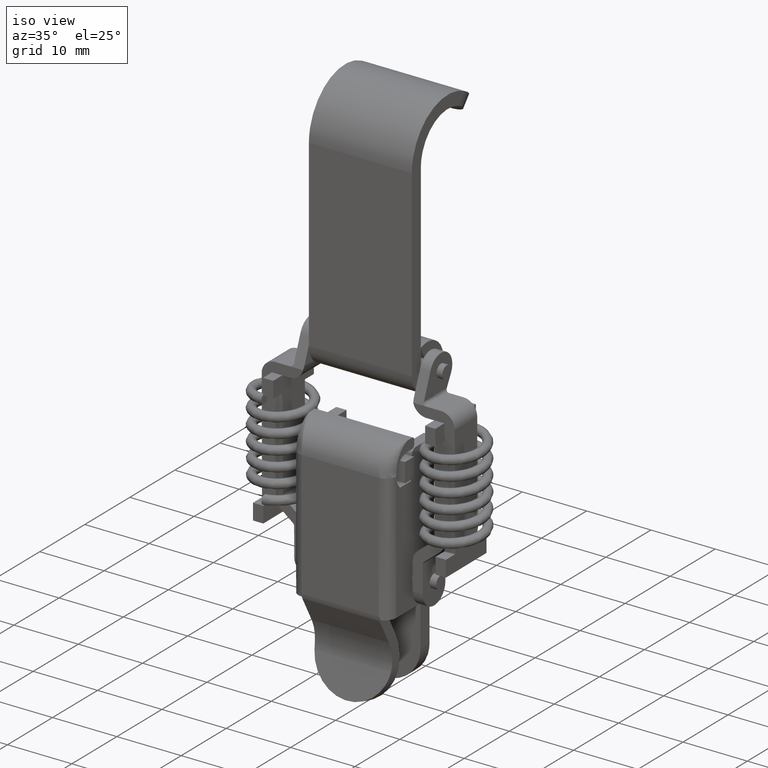
[diagram: clean part render]
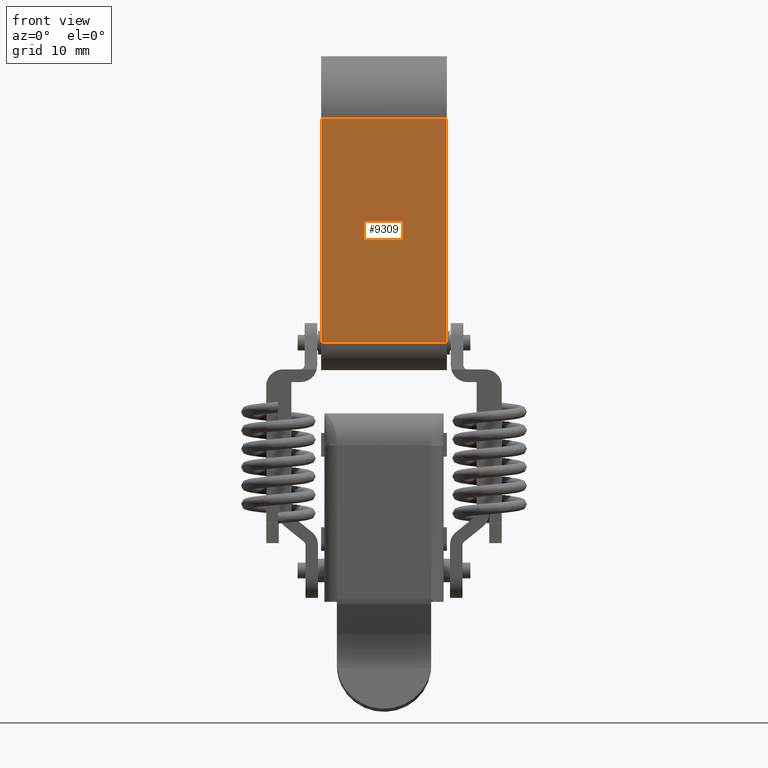
[diagram: tour spotlight — one face highlighted and labeled with its STEP entity id]
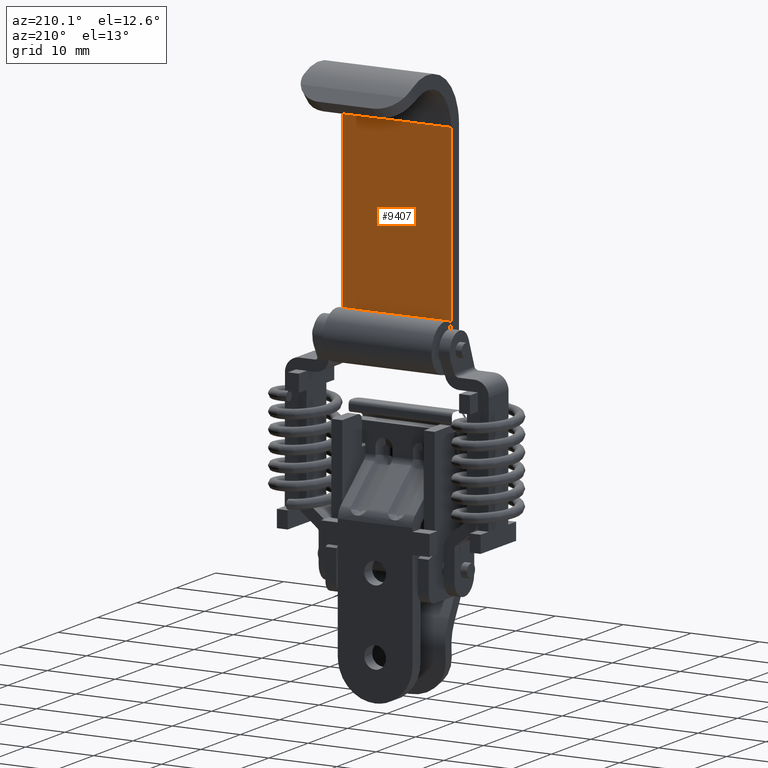
[diagram: tour spotlight — one face highlighted and labeled with its STEP entity id]
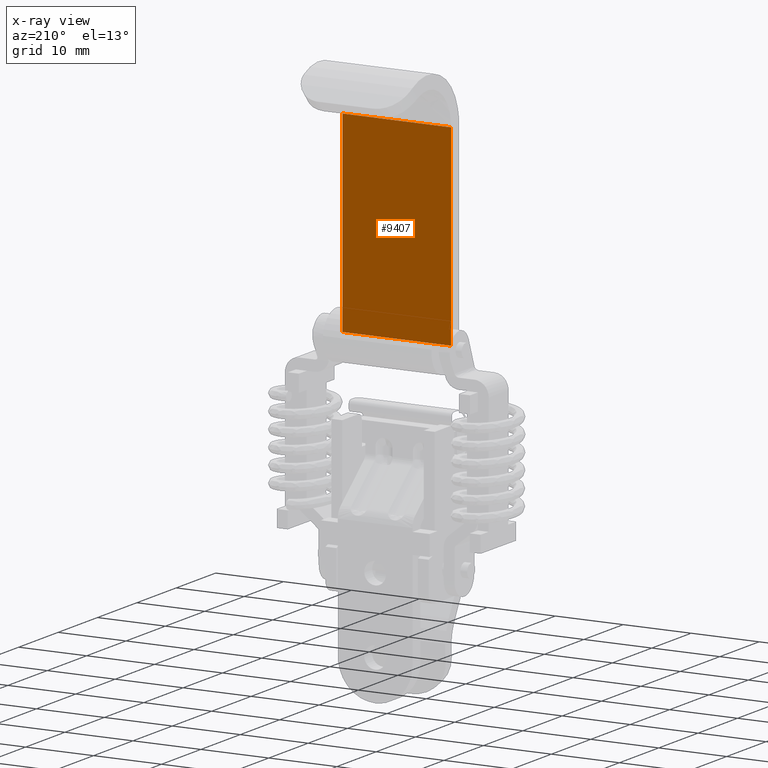
[diagram: x-ray of the same camera — body ghosted, this tour face saturated]
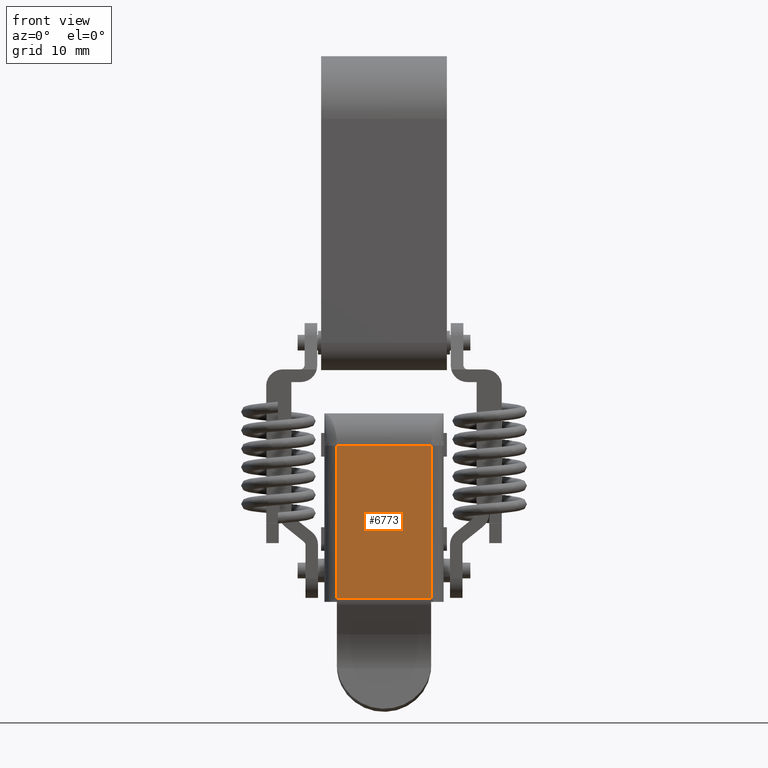
[diagram: tour spotlight — one face highlighted and labeled with its STEP entity id]
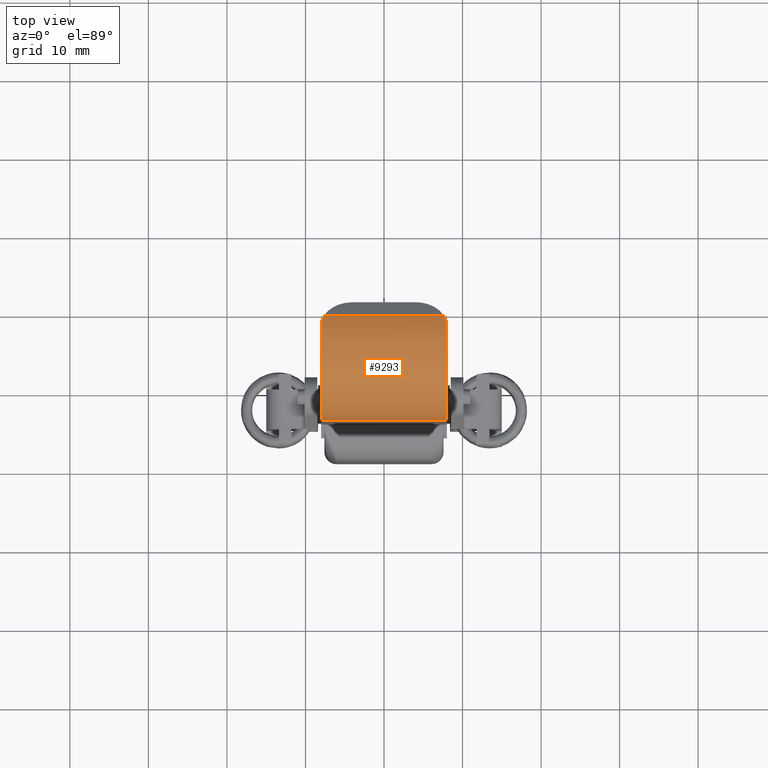
[diagram: tour spotlight — one face highlighted and labeled with its STEP entity id]
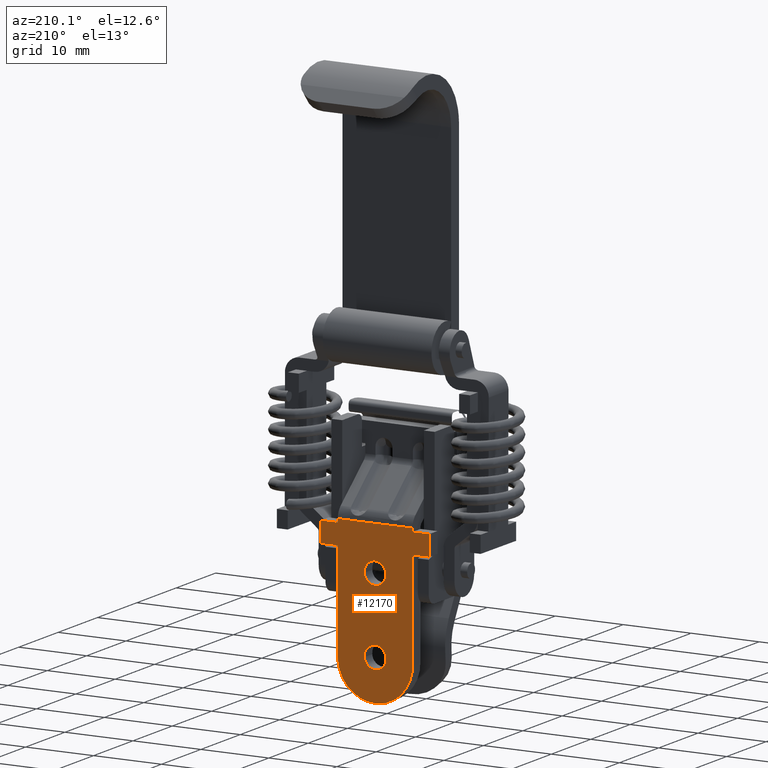
[diagram: tour spotlight — one face highlighted and labeled with its STEP entity id]
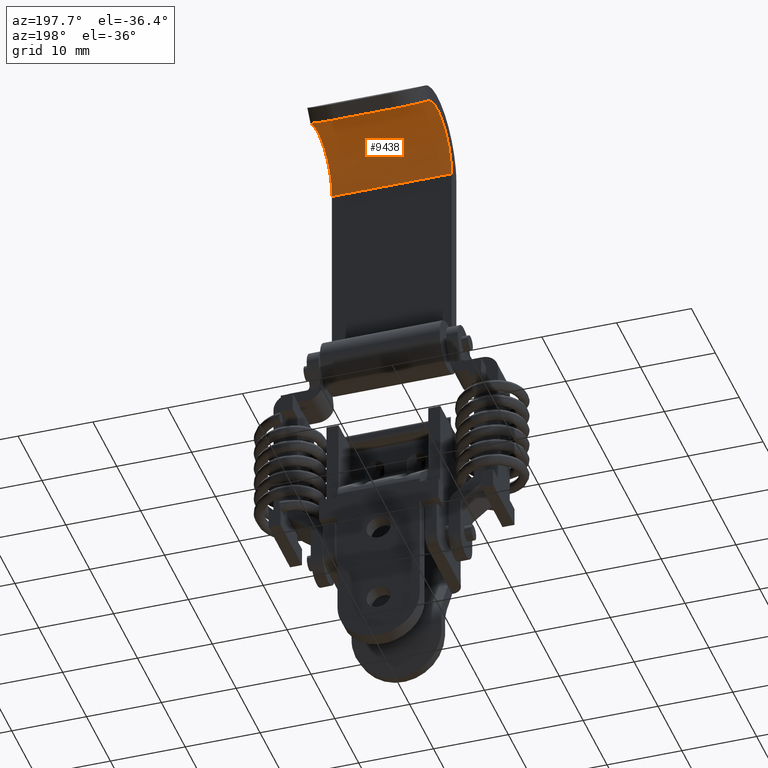
[diagram: tour spotlight — one face highlighted and labeled with its STEP entity id]
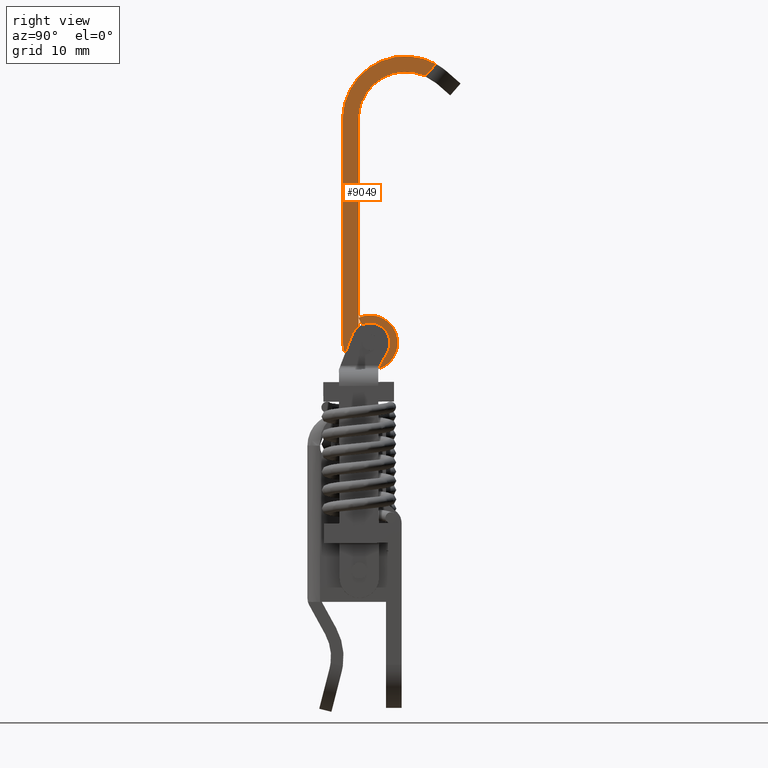
[diagram: tour spotlight — one face highlighted and labeled with its STEP entity id]
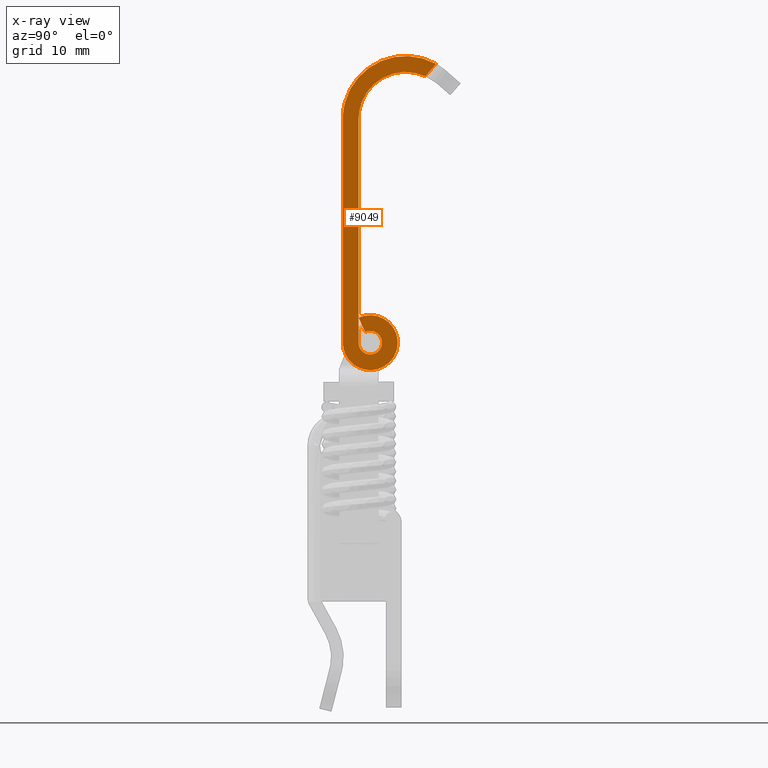
[diagram: x-ray of the same camera — body ghosted, this tour face saturated]
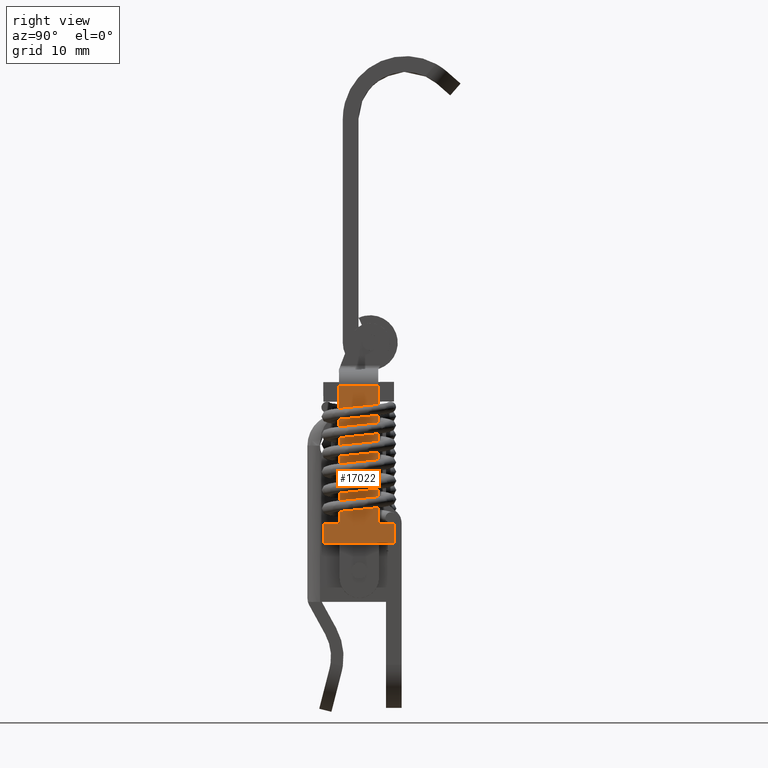
[diagram: tour spotlight — one face highlighted and labeled with its STEP entity id]
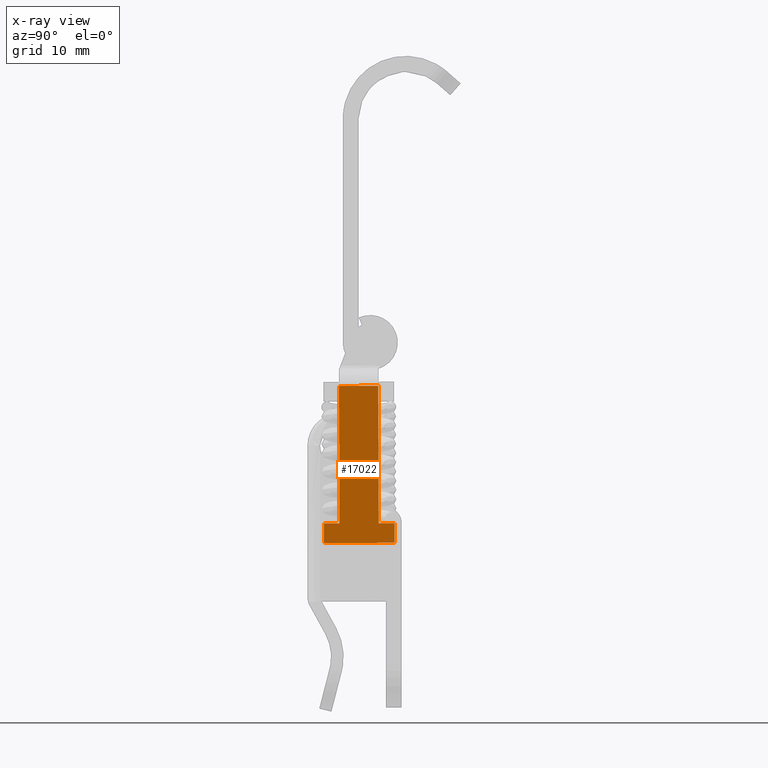
[diagram: x-ray of the same camera — body ghosted, this tour face saturated]
A machine part: a face-by-face anatomy tour. The part has 276 B-rep faces; the first image is the clean iso view, then the 8 largest visible faces are spotlighted one at a time (largest first), each with its STEP entity span.

Face 1 — front view, entity #9309. In plain terms, the highlighted face is a freeform B-spline surface patch.
Definition (entity closure, byte-faithful):
#8881=CARTESIAN_POINT('',(8.0,-4.500000000000000,28.499982501431450));
#8882=VERTEX_POINT('',#8881);
#8901=CARTESIAN_POINT('',(8.0,-4.499999999999956,0.000000549778721));
#8902=VERTEX_POINT('',#8901);
#8903=CARTESIAN_POINT('',(8.0,-4.499999999999956,0.000000549778721));
#8904=CARTESIAN_POINT('',(8.0,-4.500000000000000,28.499982501431450));
#8905=QUASI_UNIFORM_CURVE('',1,(#8903,#8904),.UNSPECIFIED.,.F.,.U.);
#8906=EDGE_CURVE('',#8902,#8882,#8905,.T.);
#9055=CARTESIAN_POINT('',(-8.0,-4.500000000000000,28.499982501431450));
#9056=VERTEX_POINT('',#9055);
#9136=CARTESIAN_POINT('',(-8.0,-4.499999999999956,0.000000549778721));
#9137=VERTEX_POINT('',#9136);
#9235=CARTESIAN_POINT('',(-8.0,-4.499999999999956,0.000000549778721));
#9236=CARTESIAN_POINT('',(-8.0,-4.500000000000000,28.499982501431450));
#9237=QUASI_UNIFORM_CURVE('',1,(#9235,#9236),.UNSPECIFIED.,.F.,.U.);
#9238=EDGE_CURVE('',#9137,#9056,#9237,.T.);
#9284=CARTESIAN_POINT('',(-8.0,-4.500000000000000,28.499982501431450));
#9285=CARTESIAN_POINT('',(8.0,-4.500000000000000,28.499982501431450));
#9286=QUASI_UNIFORM_CURVE('',1,(#9284,#9285),.UNSPECIFIED.,.F.,.U.);
#9287=EDGE_CURVE('',#9056,#8882,#9286,.T.);
#9294=CARTESIAN_POINT('',(-8.799199968988898,-4.500000000000000,-1.423573493467836));
#9295=CARTESIAN_POINT('',(-8.799199968988898,-4.500000000000000,29.923557309107089));
#9296=CARTESIAN_POINT('',(8.799200398142340,-4.500000000000000,-1.423573493467836));
#9297=CARTESIAN_POINT('',(8.799200398142340,-4.500000000000000,29.923557309107089));
#9298=B_SPLINE_SURFACE_WITH_KNOTS('',1,1,((#9294,#9296),(#9295,#9297)),.UNSPECIFIED.,.F.,.F.,.U.,(2,2),(2,2),(0.0,31.347130802574931),(0.0,17.598400367131241),.UNSPECIFIED.);
#9299=ORIENTED_EDGE('',*,*,#8906,.T.);
#9300=ORIENTED_EDGE('',*,*,#9287,.F.);
#9301=ORIENTED_EDGE('',*,*,#9238,.F.);
#9302=CARTESIAN_POINT('',(-8.0,-4.499999999999956,0.000000549778721));
#9303=CARTESIAN_POINT('',(8.0,-4.499999999999956,0.000000549778721));
#9304=QUASI_UNIFORM_CURVE('',1,(#9302,#9303),.UNSPECIFIED.,.F.,.U.);
#9305=EDGE_CURVE('',#9137,#8902,#9304,.T.);
#9306=ORIENTED_EDGE('',*,*,#9305,.T.);
#9307=EDGE_LOOP('',(#9299,#9300,#9301,#9306));
#9308=FACE_OUTER_BOUND('',#9307,.T.);
#9309=ADVANCED_FACE('',(#9308),#9298,.F.);

Face 2 — auxiliary view, entity #9407. An x-ray twin of the same camera follows (body ghosted, this face saturated) — the face is partly hidden behind the body. In plain terms, the highlighted face is a freeform B-spline surface patch.
Definition (entity closure, byte-faithful):
#8862=CARTESIAN_POINT('',(8.0,-2.500000000000000,28.499991563044549));
#8863=VERTEX_POINT('',#8862);
#9014=CARTESIAN_POINT('',(8.0,-2.500000000000000,0.0));
#9015=VERTEX_POINT('',#9014);
#9042=CARTESIAN_POINT('',(8.0,-2.500000000000000,28.499991563044549));
#9043=CARTESIAN_POINT('',(8.0,-2.500000000000000,0.0));
#9044=QUASI_UNIFORM_CURVE('',1,(#9042,#9043),.UNSPECIFIED.,.F.,.U.);
#9045=EDGE_CURVE('',#8863,#9015,#9044,.T.);
#9076=CARTESIAN_POINT('',(-8.0,-2.500000000000000,28.499991563044549));
#9077=VERTEX_POINT('',#9076);
#9094=CARTESIAN_POINT('',(-8.0,-2.500000000000000,0.0));
#9095=VERTEX_POINT('',#9094);
#9096=CARTESIAN_POINT('',(-8.0,-2.500000000000000,28.499991563044549));
#9097=CARTESIAN_POINT('',(-8.0,-2.500000000000000,0.0));
#9098=QUASI_UNIFORM_CURVE('',1,(#9096,#9097),.UNSPECIFIED.,.F.,.U.);
#9099=EDGE_CURVE('',#9077,#9095,#9098,.T.);
#9384=CARTESIAN_POINT('',(-8.0,-2.500000000000000,0.0));
#9385=CARTESIAN_POINT('',(8.0,-2.500000000000000,0.0));
#9386=QUASI_UNIFORM_CURVE('',1,(#9384,#9385),.UNSPECIFIED.,.F.,.U.);
#9387=EDGE_CURVE('',#9095,#9015,#9386,.T.);
#9392=CARTESIAN_POINT('',(-8.799199968988896,-2.500000000000000,29.923566086380109));
#9393=CARTESIAN_POINT('',(-8.799199968988896,-2.500000000000000,-1.423575287764902));
#9394=CARTESIAN_POINT('',(8.799200398142338,-2.500000000000000,29.923566086380109));
#9395=CARTESIAN_POINT('',(8.799200398142338,-2.500000000000000,-1.423575287764902));
#9396=B_SPLINE_SURFACE_WITH_KNOTS('',1,1,((#9392,#9394),(#9393,#9395)),.UNSPECIFIED.,.F.,.F.,.U.,(2,2),(2,2),(0.0,31.347141374145011),(0.0,17.598400367131230),.UNSPECIFIED.);
#9397=ORIENTED_EDGE('',*,*,#9045,.T.);
#9398=ORIENTED_EDGE('',*,*,#9387,.F.);
#9399=ORIENTED_EDGE('',*,*,#9099,.F.);
#9400=CARTESIAN_POINT('',(-8.0,-2.500000000000000,28.499991563044549));
#9401=CARTESIAN_POINT('',(8.0,-2.500000000000000,28.499991563044549));
#9402=QUASI_UNIFORM_CURVE('',1,(#9400,#9401),.UNSPECIFIED.,.F.,.U.);
#9403=EDGE_CURVE('',#9077,#8863,#9402,.T.);
#9404=ORIENTED_EDGE('',*,*,#9403,.T.);
#9405=EDGE_LOOP('',(#9397,#9398,#9399,#9404));
#9406=FACE_OUTER_BOUND('',#9405,.T.);
#9407=ADVANCED_FACE('',(#9406),#9396,.F.);

Face 3 — front view, entity #6773. In plain terms, the highlighted face is a freeform B-spline surface patch.
Definition (entity closure, byte-faithful):
#6738=CARTESIAN_POINT('',(-6.599405826891679,-9.0,-12.126510402554130));
#6739=CARTESIAN_POINT('',(-6.599405826891679,-9.0,-33.562904226697611));
#6740=CARTESIAN_POINT('',(6.599391148756679,-9.0,-12.126510402554130));
#6741=CARTESIAN_POINT('',(6.599391148756679,-9.0,-33.562904226697611));
#6742=B_SPLINE_SURFACE_WITH_KNOTS('',1,1,((#6738,#6740),(#6739,#6741)),.UNSPECIFIED.,.F.,.F.,.U.,(2,2),(2,2),(0.0,21.436393824143490),(0.0,13.198796975648360),.UNSPECIFIED.);
#6743=CARTESIAN_POINT('',(-6.000006000000000,-9.0,-13.100005999999841));
#6744=VERTEX_POINT('',#6743);
#6745=CARTESIAN_POINT('',(-6.000006000000000,-9.0,-32.589408106505402));
#6746=VERTEX_POINT('',#6745);
#6747=CARTESIAN_POINT('',(-6.000006000000000,-9.0,-13.100005999999841));
#6748=CARTESIAN_POINT('',(-6.000006000000000,-9.0,-32.589408106505402));
#6749=QUASI_UNIFORM_CURVE('',1,(#6747,#6748),.UNSPECIFIED.,.F.,.U.);
#6750=EDGE_CURVE('',#6744,#6746,#6749,.T.);
#6751=ORIENTED_EDGE('',*,*,#6750,.T.);
#6752=CARTESIAN_POINT('',(5.999991000000000,-9.0,-32.589408106505402));
#6753=VERTEX_POINT('',#6752);
#6754=CARTESIAN_POINT('',(-6.000006000000000,-9.0,-32.589408106505402));
#6755=CARTESIAN_POINT('',(5.999991000000000,-9.0,-32.589408106505402));
#6756=QUASI_UNIFORM_CURVE('',1,(#6754,#6755),.UNSPECIFIED.,.F.,.U.);
#6757=EDGE_CURVE('',#6746,#6753,#6756,.T.);
#6758=ORIENTED_EDGE('',*,*,#6757,.T.);
#6759=CARTESIAN_POINT('',(5.999991000000000,-9.0,-13.100005999999841));
#6760=VERTEX_POINT('',#6759);
#6761=CARTESIAN_POINT('',(5.999991000000000,-9.0,-32.589408106505402));
#6762=CARTESIAN_POINT('',(5.999991000000000,-9.0,-13.100005999999841));
#6763=QUASI_UNIFORM_CURVE('',1,(#6761,#6762),.UNSPECIFIED.,.F.,.U.);
#6764=EDGE_CURVE('',#6753,#6760,#6763,.T.);
#6765=ORIENTED_EDGE('',*,*,#6764,.T.);
#6766=CARTESIAN_POINT('',(5.999991000000000,-9.0,-13.100005999999841));
#6767=CARTESIAN_POINT('',(-6.000006000000000,-9.0,-13.100005999999841));
#6768=QUASI_UNIFORM_CURVE('',1,(#6766,#6767),.UNSPECIFIED.,.F.,.U.);
#6769=EDGE_CURVE('',#6760,#6744,#6768,.T.);
#6770=ORIENTED_EDGE('',*,*,#6769,.T.);
#6771=EDGE_LOOP('',(#6751,#6758,#6765,#6770));
#6772=FACE_OUTER_BOUND('',#6771,.T.);
#6773=ADVANCED_FACE('',(#6772),#6742,.T.);

Face 4 — top view, entity #9293. In plain terms, the highlighted face is a freeform B-spline surface patch.
Definition (entity closure, byte-faithful):
#8689=CARTESIAN_POINT('',(8.0,7.368789062571080,35.502301487976553));
#8690=VERTEX_POINT('',#8689);
#8691=CARTESIAN_POINT('',(7.622937863234540,8.764766076153901,34.523456429604337));
#8692=VERTEX_POINT('',#8691);
#8693=CARTESIAN_POINT('',(8.0,7.368789062571080,35.502301487976553));
#8694=CARTESIAN_POINT('',(8.0,7.627873556363488,35.359157015725017));
#8695=CARTESIAN_POINT('',(7.968959856511795,7.873816036864618,35.204564330667701));
#8696=CARTESIAN_POINT('',(7.890683168882232,8.165871544735548,34.998809164172663));
#8697=CARTESIAN_POINT('',(7.873033527036416,8.223509864963681,34.957031753382168));
#8698=CARTESIAN_POINT('',(7.833643149466014,8.337251420407766,34.872268526265060));
#8699=CARTESIAN_POINT('',(7.811841256666209,8.393482585490334,34.829178962002928));
#8700=CARTESIAN_POINT('',(7.740725465015819,8.558481552373525,34.699285929101961));
#8701=CARTESIAN_POINT('',(7.685677980413677,8.663818541218593,34.611688762596259));
#8702=CARTESIAN_POINT('',(7.622937863234410,8.764766076153901,34.523456429604337));
#8703=B_SPLINE_CURVE_WITH_KNOTS('',3,(#8693,#8694,#8695,#8696,#8697,#8698,#8699,#8700,#8701,#8702),.UNSPECIFIED.,.F.,.U.,(4,2,2,2,4),(0.0,0.499999999999995,0.624999999999997,0.749999999999999,1.0),.UNSPECIFIED.);
#8704=EDGE_CURVE('',#8690,#8692,#8703,.T.);
#8782=CARTESIAN_POINT('',(-7.622937863234419,8.764766076153901,34.523456429604337));
#8783=VERTEX_POINT('',#8782);
#8834=CARTESIAN_POINT('',(-8.0,7.368789062571080,35.502301487976553));
#8835=VERTEX_POINT('',#8834);
#8841=CARTESIAN_POINT('',(-7.622937863234419,8.764766076153901,34.523456429604337));
#8842=CARTESIAN_POINT('',(-7.748395423831894,8.562907487890115,34.699889209150541));
#8843=CARTESIAN_POINT('',(-7.841918335136528,8.345913146877594,34.871697620799573));
#8844=CARTESIAN_POINT('',(-7.920756518905114,8.054116416124566,35.077605583155297));
#8845=CARTESIAN_POINT('',(-7.934599755881608,7.994723085664498,35.118346433901898));
#8846=CARTESIAN_POINT('',(-7.958400065085481,7.873800230563132,35.198874074113981));
#8847=CARTESIAN_POINT('',(-7.968370959999855,7.812120856388750,35.238751852098602));
#8848=CARTESIAN_POINT('',(-7.992172487811647,7.625370089804019,35.355849783440760));
#8849=CARTESIAN_POINT('',(-7.999999999999998,7.498354176649919,35.430716617706828));
#8850=CARTESIAN_POINT('',(-8.0,7.368789062571080,35.502301487976553));
#8851=B_SPLINE_CURVE_WITH_KNOTS('',3,(#8841,#8842,#8843,#8844,#8845,#8846,#8847,#8848,#8849,#8850),.UNSPECIFIED.,.F.,.U.,(4,2,2,2,4),(0.0,0.499999999999995,0.624999999999998,0.750000000000002,1.0),.UNSPECIFIED.);
#8852=EDGE_CURVE('',#8783,#8835,#8851,.T.);
#8881=CARTESIAN_POINT('',(8.0,-4.500000000000000,28.499982501431450));
#8882=VERTEX_POINT('',#8881);
#8883=CARTESIAN_POINT('',(8.0,7.368789062571080,35.502301487976553));
#8884=CARTESIAN_POINT('',(7.999999999999983,6.933560678378550,35.742830071488079));
#8885=CARTESIAN_POINT('',(8.000000000000032,6.137466675194601,36.090171726025119));
#8886=CARTESIAN_POINT('',(7.999999999999986,4.898383308889815,36.405738737465370));
#8887=CARTESIAN_POINT('',(8.000000000000004,3.604253566869668,36.540106854767430));
#8888=CARTESIAN_POINT('',(8.000000000000020,2.065768286691338,36.430971639415198));
#8889=CARTESIAN_POINT('',(8.000000000000005,0.602640414837562,36.007523645602561));
#8890=CARTESIAN_POINT('',(8.0,-0.790246430213158,35.303190164867083));
#8891=CARTESIAN_POINT('',(7.999999999999998,-1.866144180203041,34.491218853728213));
#8892=CARTESIAN_POINT('',(8.000000000000004,-2.719346425791906,33.567655540538858));
#8893=CARTESIAN_POINT('',(7.999999999999973,-3.420242258613065,32.578014872378141));
#8894=CARTESIAN_POINT('',(8.000000000000055,-3.962620383271957,31.489150583428032));
#8895=CARTESIAN_POINT('',(7.999999999999918,-4.393005198279665,30.056607388001851));
#8896=CARTESIAN_POINT('',(8.000000000000068,-4.500109757290828,29.083742189804831));
#8897=CARTESIAN_POINT('',(8.0,-4.500000000000000,28.499982501431450));
#8898=B_SPLINE_CURVE_WITH_KNOTS('',3,(#8883,#8884,#8885,#8886,#8887,#8888,#8889,#8890,#8891,#8892,#8893,#8894,#8895,#8896,#8897),.UNSPECIFIED.,.F.,.U.,(4,1,1,1,1,1,1,1,1,1,1,1,4),(0.000000107952683,1.491802251403486,2.594437472140680,3.826820266118190,5.383504920407898,7.199621690405914,8.367077176379695,10.053508919860731,11.221013706888600,12.129070117695511,13.685747590884230,14.853252377914069,16.604507500742798),.UNSPECIFIED.);
#8899=EDGE_CURVE('',#8690,#8882,#8898,.T.);
#9055=CARTESIAN_POINT('',(-8.0,-4.500000000000000,28.499982501431450));
#9056=VERTEX_POINT('',#9055);
#9057=CARTESIAN_POINT('',(-8.0,7.368789062571080,35.502301487976553));
#9058=CARTESIAN_POINT('',(-7.999999999999983,6.933560678378550,35.742830071488079));
#9059=CARTESIAN_POINT('',(-8.000000000000032,6.137466675194601,36.090171726025119));
#9060=CARTESIAN_POINT('',(-7.999999999999986,4.898383308889815,36.405738737465370));
#9061=CARTESIAN_POINT('',(-8.000000000000004,3.604253566869668,36.540106854767430));
#9062=CARTESIAN_POINT('',(-8.000000000000020,2.065768286691338,36.430971639415198));
#9063=CARTESIAN_POINT('',(-8.000000000000005,0.602640414837562,36.007523645602561));
#9064=CARTESIAN_POINT('',(-8.0,-0.790246430213158,35.303190164867083));
#9065=CARTESIAN_POINT('',(-7.999999999999998,-1.866144180203041,34.491218853728213));
#9066=CARTESIAN_POINT('',(-8.000000000000004,-2.719346425791906,33.567655540538858));
#9067=CARTESIAN_POINT('',(-7.999999999999973,-3.420242258613065,32.578014872378141));
#9068=CARTESIAN_POINT('',(-8.000000000000055,-3.962620383271957,31.489150583428032));
#9069=CARTESIAN_POINT('',(-7.999999999999918,-4.393005198279665,30.056607388001851));
#9070=CARTESIAN_POINT('',(-8.000000000000068,-4.500109757290828,29.083742189804831));
#9071=CARTESIAN_POINT('',(-8.0,-4.500000000000000,28.499982501431450));
#9072=B_SPLINE_CURVE_WITH_KNOTS('',3,(#9057,#9058,#9059,#9060,#9061,#9062,#9063,#9064,#9065,#9066,#9067,#9068,#9069,#9070,#9071),.UNSPECIFIED.,.F.,.U.,(4,1,1,1,1,1,1,1,1,1,1,1,4),(0.000000107952683,1.491802251403486,2.594437472140680,3.826820266118190,5.383504920407898,7.199621690405914,8.367077176379695,10.053508919860731,11.221013706888600,12.129070117695511,13.685747590884230,14.853252377914069,16.604507500742798),.UNSPECIFIED.);
#9073=EDGE_CURVE('',#8835,#9056,#9072,.T.);
#9254=CARTESIAN_POINT('',(-7.622937863234419,8.764766076153901,34.523456429604337));
#9255=CARTESIAN_POINT('',(7.622937863234540,8.764766076153901,34.523456429604337));
#9256=QUASI_UNIFORM_CURVE('',1,(#9254,#9255),.UNSPECIFIED.,.F.,.U.);
#9257=EDGE_CURVE('',#8783,#8692,#9256,.T.);
#9263=CARTESIAN_POINT('',(-8.400000000000000,-4.497258599804455,28.290566914968458));
#9264=CARTESIAN_POINT('',(8.410000000000000,-4.497258599804455,28.290566914968458));
#9265=CARTESIAN_POINT('',(-8.400000000000000,-4.638511196433294,33.684785951927907));
#9266=CARTESIAN_POINT('',(8.410000000000000,-4.638511196433294,33.684785951927907));
#9267=CARTESIAN_POINT('',(-8.400000000000000,0.310007448598029,35.836463096512432));
#9268=CARTESIAN_POINT('',(8.410000000000000,0.310007448598029,35.836463096512432));
#9269=CARTESIAN_POINT('',(-8.400000000000000,5.258526093629346,37.988140241096978));
#9270=CARTESIAN_POINT('',(8.410000000000000,5.258526093629346,37.988140241096978));
#9271=CARTESIAN_POINT('',(-8.400000000000000,9.107274114398802,34.205986094664901));
#9272=CARTESIAN_POINT('',(8.410000000000000,9.107274114398802,34.205986094664901));
#9280=(BOUNDED_SURFACE()B_SPLINE_SURFACE(1,2,((#9263,#9265,#9267,#9269,#9271),(#9264,#9266,#9268,#9270,#9272)),.UNSPECIFIED.,.F.,.F.,.U.)B_SPLINE_SURFACE_WITH_KNOTS((2,2),(3,2,3),(0.0,16.809999999999999),(0.0,9.783381806677133,19.566763613354269),.UNSPECIFIED.)GEOMETRIC_REPRESENTATION_ITEM()RATIONAL_B_SPLINE_SURFACE(((1.0,0.829037572555042,1.0,0.829037572555042,1.0),(1.0,0.829037572555042,1.0,0.829037572555042,1.0)))REPRESENTATION_ITEM('')SURFACE());
#9281=ORIENTED_EDGE('',*,*,#9257,.F.);
#9282=ORIENTED_EDGE('',*,*,#8852,.T.);
#9283=ORIENTED_EDGE('',*,*,#9073,.T.);
#9284=CARTESIAN_POINT('',(-8.0,-4.500000000000000,28.499982501431450));
#9285=CARTESIAN_POINT('',(8.0,-4.500000000000000,28.499982501431450));
#9286=QUASI_UNIFORM_CURVE('',1,(#9284,#9285),.UNSPECIFIED.,.F.,.U.);
#9287=EDGE_CURVE('',#9056,#8882,#9286,.T.);
#9288=ORIENTED_EDGE('',*,*,#9287,.T.);
#9289=ORIENTED_EDGE('',*,*,#8899,.F.);
#9290=ORIENTED_EDGE('',*,*,#8704,.T.);
#9291=EDGE_LOOP('',(#9281,#9282,#9283,#9288,#9289,#9290));
#9292=FACE_OUTER_BOUND('',#9291,.T.);
#9293=ADVANCED_FACE('',(#9292),#9280,.T.);

Face 5 — auxiliary view, entity #12170. In plain terms, the highlighted face is a freeform B-spline surface patch.
Definition (entity closure, byte-faithful):
#9504=CARTESIAN_POINT('',(-1.595067957368681,3.0,-40.374483285411223));
#9505=VERTEX_POINT('',#9504);
#9511=CARTESIAN_POINT('',(0.0,3.0,-38.900015000000003));
#9512=VERTEX_POINT('',#9511);
#9513=CARTESIAN_POINT('',(0.0,3.0,-38.900015000000003));
#9514=CARTESIAN_POINT('',(-1.479027426858777,3.000000000000001,-38.900015000000110));
#9515=CARTESIAN_POINT('',(-1.595067957368681,3.0,-40.374483285411223));
#9523=(BOUNDED_CURVE()B_SPLINE_CURVE(2,(#9513,#9514,#9515),.UNSPECIFIED.,.F.,.U.)B_SPLINE_CURVE_WITH_KNOTS((3,3),(0.0,0.236331605699120),.UNSPECIFIED.)CURVE()GEOMETRIC_REPRESENTATION_ITEM()RATIONAL_B_SPLINE_CURVE((1.0,0.723120301197733,0.969723992822893))REPRESENTATION_ITEM(''));
#9524=EDGE_CURVE('',#9512,#9505,#9523,.T.);
#9526=CARTESIAN_POINT('',(1.595067957368682,3.0,-40.625546714588772));
#9527=VERTEX_POINT('',#9526);
#9528=CARTESIAN_POINT('',(1.595067957368682,3.000000000000000,-40.625546714588758));
#9529=CARTESIAN_POINT('',(1.599999999997520,2.999999999999999,-40.562877745337971));
#9530=CARTESIAN_POINT('',(1.599999999997570,3.0,-40.500014999999813));
#9531=CARTESIAN_POINT('',(1.599999999998833,3.0,-38.900014999999918));
#9532=CARTESIAN_POINT('',(0.0,3.0,-38.900015000000003));
#9540=(BOUNDED_CURVE()B_SPLINE_CURVE(2,(#9528,#9529,#9530,#9531,#9532),.UNSPECIFIED.,.F.,.U.)B_SPLINE_CURVE_WITH_KNOTS((3,2,3),(0.736331605699121,0.750000000000000,1.0),.UNSPECIFIED.)CURVE()GEOMETRIC_REPRESENTATION_ITEM()RATIONAL_B_SPLINE_CURVE((0.969723992822897,0.983986479988817,1.0,0.707106781186548,1.0))REPRESENTATION_ITEM(''));
#9541=EDGE_CURVE('',#9527,#9512,#9540,.T.);
#9617=CARTESIAN_POINT('',(0.0,3.0,-42.100014999999999));
#9618=VERTEX_POINT('',#9617);
#9619=CARTESIAN_POINT('',(0.0,3.0,-42.100014999999999));
#9620=CARTESIAN_POINT('',(1.479027426858787,3.000000000000000,-42.100014999999907));
#9621=CARTESIAN_POINT('',(1.595067957368681,3.000000000000000,-40.625546714588765));
#9629=(BOUNDED_CURVE()B_SPLINE_CURVE(2,(#9619,#9620,#9621),.UNSPECIFIED.,.F.,.U.)B_SPLINE_CURVE_WITH_KNOTS((3,3),(0.500000000000000,0.736331605699121),.UNSPECIFIED.)CURVE()GEOMETRIC_REPRESENTATION_ITEM()RATIONAL_B_SPLINE_CURVE((1.0,0.723120301197731,0.969723992822896))REPRESENTATION_ITEM(''));
#9630=EDGE_CURVE('',#9618,#9527,#9629,.T.);
#9632=CARTESIAN_POINT('',(-1.595067957368681,3.000000000000000,-40.374483285411223));
#9633=CARTESIAN_POINT('',(-1.599999999997520,2.999999999999999,-40.437152254662031));
#9634=CARTESIAN_POINT('',(-1.599999999997570,3.0,-40.500015000000190));
#9635=CARTESIAN_POINT('',(-1.599999999998833,3.0,-42.100015000000084));
#9636=CARTESIAN_POINT('',(0.0,3.0,-42.100014999999999));
#9644=(BOUNDED_CURVE()B_SPLINE_CURVE(2,(#9632,#9633,#9634,#9635,#9636),.UNSPECIFIED.,.F.,.U.)B_SPLINE_CURVE_WITH_KNOTS((3,2,3),(0.236331605699121,0.250000000000000,0.500000000000000),.UNSPECIFIED.)CURVE()GEOMETRIC_REPRESENTATION_ITEM()RATIONAL_B_SPLINE_CURVE((0.969723992822895,0.983986479988816,1.0,0.707106781186548,1.0))REPRESENTATION_ITEM(''));
#9645=EDGE_CURVE('',#9505,#9618,#9644,.T.);
#9686=CARTESIAN_POINT('',(-1.595067957368682,3.0,-29.374483285411142));
#9687=VERTEX_POINT('',#9686);
#9693=CARTESIAN_POINT('',(0.0,3.0,-27.900014999999900));
#9694=VERTEX_POINT('',#9693);
#9695=CARTESIAN_POINT('',(0.0,3.0,-27.900014999999900));
#9696=CARTESIAN_POINT('',(-1.479027426858794,3.000000000000000,-27.900014999999989));
#9697=CARTESIAN_POINT('',(-1.595067957368682,3.000000000000000,-29.374483285411145));
#9705=(BOUNDED_CURVE()B_SPLINE_CURVE(2,(#9695,#9696,#9697),.UNSPECIFIED.,.F.,.U.)B_SPLINE_CURVE_WITH_KNOTS((3,3),(0.0,0.236331605699122),.UNSPECIFIED.)CURVE()GEOMETRIC_REPRESENTATION_ITEM()RATIONAL_B_SPLINE_CURVE((1.0,0.723120301197730,0.969723992822898))REPRESENTATION_ITEM(''));
#9706=EDGE_CURVE('',#9694,#9687,#9705,.T.);
#9708=CARTESIAN_POINT('',(1.595067957368682,3.0,-29.625546714588658));
#9709=VERTEX_POINT('',#9708);
#9710=CARTESIAN_POINT('',(1.595067957368681,3.000000000000000,-29.625546714588662));
#9711=CARTESIAN_POINT('',(1.599999999997520,3.000000000000001,-29.562877745337861));
#9712=CARTESIAN_POINT('',(1.599999999997570,3.0,-29.500014999999710));
#9713=CARTESIAN_POINT('',(1.599999999998833,3.0,-27.900014999999811));
#9714=CARTESIAN_POINT('',(0.0,3.0,-27.900014999999900));
#9722=(BOUNDED_CURVE()B_SPLINE_CURVE(2,(#9710,#9711,#9712,#9713,#9714),.UNSPECIFIED.,.F.,.U.)B_SPLINE_CURVE_WITH_KNOTS((3,2,3),(0.736331605699122,0.750000000000000,1.0),.UNSPECIFIED.)CURVE()GEOMETRIC_REPRESENTATION_ITEM()RATIONAL_B_SPLINE_CURVE((0.969723992822898,0.983986479988818,1.0,0.707106781186548,1.0))REPRESENTATION_ITEM(''));
#9723=EDGE_CURVE('',#9709,#9694,#9722,.T.);
#9799=CARTESIAN_POINT('',(0.0,3.0,-31.100014999999900));
#9800=VERTEX_POINT('',#9799);
#9801=CARTESIAN_POINT('',(0.0,3.0,-31.100014999999900));
#9802=CARTESIAN_POINT('',(1.479027426858794,3.000000000000001,-31.100014999999793));
#9803=CARTESIAN_POINT('',(1.595067957368682,3.000000000000000,-29.625546714588658));
#9811=(BOUNDED_CURVE()B_SPLINE_CURVE(2,(#9801,#9802,#9803),.UNSPECIFIED.,.F.,.U.)B_SPLINE_CURVE_WITH_KNOTS((3,3),(0.500000000000000,0.736331605699122),.UNSPECIFIED.)CURVE()GEOMETRIC_REPRESENTATION_ITEM()RATIONAL_B_SPLINE_CURVE((1.0,0.723120301197730,0.969723992822898))REPRESENTATION_ITEM(''));
#9812=EDGE_CURVE('',#9800,#9709,#9811,.T.);
#9814=CARTESIAN_POINT('',(-1.595067957368682,3.000000000000000,-29.374483285411138));
#9815=CARTESIAN_POINT('',(-1.599999999997520,2.999999999999999,-29.437152254661942));
#9816=CARTESIAN_POINT('',(-1.599999999997570,2.999999999999999,-29.500015000000101));
#9817=CARTESIAN_POINT('',(-1.599999999998833,2.999999999999999,-31.100014999999988));
#9818=CARTESIAN_POINT('',(0.0,3.0,-31.100014999999900));
#9826=(BOUNDED_CURVE()B_SPLINE_CURVE(2,(#9814,#9815,#9816,#9817,#9818),.UNSPECIFIED.,.F.,.U.)B_SPLINE_CURVE_WITH_KNOTS((3,2,3),(0.236331605699122,0.250000000000000,0.500000000000000),.UNSPECIFIED.)CURVE()GEOMETRIC_REPRESENTATION_ITEM()RATIONAL_B_SPLINE_CURVE((0.969723992822898,0.983986479988818,1.0,0.707106781186548,1.0))REPRESENTATION_ITEM(''));
#9827=EDGE_CURVE('',#9687,#9800,#9826,.T.);
#11519=CARTESIAN_POINT('',(8.0,3.0,-23.500000000000000));
#11520=VERTEX_POINT('',#11519);
#11526=CARTESIAN_POINT('',(5.500000000000000,3.0,-23.500000000000000));
#11527=VERTEX_POINT('',#11526);
#11528=CARTESIAN_POINT('',(5.500000000000000,3.0,-23.500000000000000));
#11529=CARTESIAN_POINT('',(8.0,3.0,-23.500000000000000));
#11530=QUASI_UNIFORM_CURVE('',1,(#11528,#11529),.UNSPECIFIED.,.F.,.U.);
#11531=EDGE_CURVE('',#11527,#11520,#11530,.T.);
#11555=CARTESIAN_POINT('',(-5.500000000000000,3.0,-23.500000000000000));
#11556=VERTEX_POINT('',#11555);
#11562=CARTESIAN_POINT('',(-8.0,3.0,-23.500000000000000));
#11563=VERTEX_POINT('',#11562);
#11564=CARTESIAN_POINT('',(-8.0,3.0,-23.500000000000000));
#11565=CARTESIAN_POINT('',(-5.500000000000000,3.0,-23.500000000000000));
#11566=QUASI_UNIFORM_CURVE('',1,(#11564,#11565),.UNSPECIFIED.,.F.,.U.);
#11567=EDGE_CURVE('',#11563,#11556,#11566,.T.);
#11590=CARTESIAN_POINT('',(-8.0,3.0,-26.500000000000000));
#11591=VERTEX_POINT('',#11590);
#11592=CARTESIAN_POINT('',(-8.0,3.0,-26.500000000000000));
#11593=CARTESIAN_POINT('',(-8.0,3.0,-23.500000000000000));
#11594=QUASI_UNIFORM_CURVE('',1,(#11592,#11593),.UNSPECIFIED.,.F.,.U.);
#11595=EDGE_CURVE('',#11591,#11563,#11594,.T.);
#11618=CARTESIAN_POINT('',(-5.500000000000000,3.0,-26.500000000000000));
#11619=VERTEX_POINT('',#11618);
#11620=CARTESIAN_POINT('',(-5.500000000000000,3.0,-26.500000000000000));
#11621=CARTESIAN_POINT('',(-8.0,3.0,-26.500000000000000));
#11622=QUASI_UNIFORM_CURVE('',1,(#11620,#11621),.UNSPECIFIED.,.F.,.U.);
#11623=EDGE_CURVE('',#11619,#11591,#11622,.T.);
#11646=CARTESIAN_POINT('',(-5.499999999999930,3.0,-41.000015863937847));
#11647=VERTEX_POINT('',#11646);
#11648=CARTESIAN_POINT('',(-5.499999999999930,3.0,-41.000015863937847));
#11649=CARTESIAN_POINT('',(-5.500000000000000,3.0,-26.500000000000000));
#11650=QUASI_UNIFORM_CURVE('',1,(#11648,#11649),.UNSPECIFIED.,.F.,.U.);
#11651=EDGE_CURVE('',#11647,#11619,#11650,.T.);
#11675=CARTESIAN_POINT('',(0.012845223817870,3.0,-46.500000000000000));
#11676=VERTEX_POINT('',#11675);
#11677=CARTESIAN_POINT('',(5.500000000000000,3.0,-41.000014999999898));
#11678=VERTEX_POINT('',#11677);
#11679=CARTESIAN_POINT('',(0.012845223817868,3.0,-46.499999999999901));
#11680=CARTESIAN_POINT('',(5.500000000000000,3.000000000000000,-46.487184741190397));
#11681=CARTESIAN_POINT('',(5.500000000000000,3.0,-41.000014999999898));
#11689=(BOUNDED_CURVE()B_SPLINE_CURVE(2,(#11679,#11680,#11681),.UNSPECIFIED.,.F.,.U.)CURVE()GEOMETRIC_REPRESENTATION_ITEM()QUASI_UNIFORM_CURVE()RATIONAL_B_SPLINE_CURVE((1.0,0.707932021891796,1.0))REPRESENTATION_ITEM(''));
#11690=EDGE_CURVE('',#11676,#11678,#11689,.T.);
#11752=CARTESIAN_POINT('',(-0.012845223817870,3.0,-46.500000000000000));
#11753=VERTEX_POINT('',#11752);
#11754=CARTESIAN_POINT('',(-5.499999999999932,3.0,-41.000015863937847));
#11755=CARTESIAN_POINT('',(-5.499999138077489,2.999999999999999,-46.487184743203443));
#11756=CARTESIAN_POINT('',(-0.012845223817869,3.0,-46.499999999999901));
#11764=(BOUNDED_CURVE()B_SPLINE_CURVE(2,(#11754,#11755,#11756),.UNSPECIFIED.,.F.,.U.)CURVE()GEOMETRIC_REPRESENTATION_ITEM()QUASI_UNIFORM_CURVE()RATIONAL_B_SPLINE_CURVE((1.0,0.707932077362939,1.0))REPRESENTATION_ITEM(''));
#11765=EDGE_CURVE('',#11647,#11753,#11764,.T.);
#11788=CARTESIAN_POINT('',(5.500000000000000,3.0,-26.500000000000000));
#11789=VERTEX_POINT('',#11788);
#11790=CARTESIAN_POINT('',(5.500000000000000,3.0,-26.500000000000000));
#11791=CARTESIAN_POINT('',(5.500000000000000,3.0,-41.000014999999898));
#11792=QUASI_UNIFORM_CURVE('',1,(#11790,#11791),.UNSPECIFIED.,.F.,.U.);
#11793=EDGE_CURVE('',#11789,#11678,#11792,.T.);
#11816=CARTESIAN_POINT('',(8.0,3.0,-26.500000000000000));
#11817=VERTEX_POINT('',#11816);
#11818=CARTESIAN_POINT('',(8.0,3.0,-26.500000000000000));
#11819=CARTESIAN_POINT('',(5.500000000000000,3.0,-26.500000000000000));
#11820=QUASI_UNIFORM_CURVE('',1,(#11818,#11819),.UNSPECIFIED.,.F.,.U.);
#11821=EDGE_CURVE('',#11817,#11789,#11820,.T.);
#11842=CARTESIAN_POINT('',(8.0,3.0,-23.500000000000000));
#11843=CARTESIAN_POINT('',(8.0,3.0,-26.500000000000000));
#11844=QUASI_UNIFORM_CURVE('',1,(#11842,#11843),.UNSPECIFIED.,.F.,.U.);
#11845=EDGE_CURVE('',#11520,#11817,#11844,.T.);
#11856=CARTESIAN_POINT('',(-0.012845223817870,3.0,-46.500000000000000));
#11857=CARTESIAN_POINT('',(0.012845223817870,3.0,-46.500000000000000));
#11858=QUASI_UNIFORM_CURVE('',1,(#11856,#11857),.UNSPECIFIED.,.F.,.U.);
#11859=EDGE_CURVE('',#11753,#11676,#11858,.T.);
#12121=CARTESIAN_POINT('',(-8.799199968988898,3.0,-21.826190794797519));
#12122=CARTESIAN_POINT('',(-8.799199968988898,3.0,-47.673824835521181));
#12123=CARTESIAN_POINT('',(8.799200398142340,3.0,-21.826190794797519));
#12124=CARTESIAN_POINT('',(8.799200398142340,3.0,-47.673824835521181));
#12125=B_SPLINE_SURFACE_WITH_KNOTS('',1,1,((#12121,#12123),(#12122,#12124)),.UNSPECIFIED.,.F.,.F.,.U.,(2,2),(2,2),(0.0,25.847634040723658),(0.0,17.598400367131241),.UNSPECIFIED.);
#12126=ORIENTED_EDGE('',*,*,#11859,.F.);
#12127=ORIENTED_EDGE('',*,*,#11765,.F.);
#12128=ORIENTED_EDGE('',*,*,#11651,.T.);
#12129=ORIENTED_EDGE('',*,*,#11623,.T.);
#12130=ORIENTED_EDGE('',*,*,#11595,.T.);
#12131=ORIENTED_EDGE('',*,*,#11567,.T.);
#12132=CARTESIAN_POINT('',(-5.500000000000000,3.0,-23.000015000000001));
#12133=VERTEX_POINT('',#12132);
#12134=CARTESIAN_POINT('',(-5.500000000000000,3.0,-23.500000000000000));
#12135=CARTESIAN_POINT('',(-5.500000000000000,3.0,-23.000015000000001));
#12136=QUASI_UNIFORM_CURVE('',1,(#12134,#12135),.UNSPECIFIED.,.F.,.U.);
#12137=EDGE_CURVE('',#11556,#12133,#12136,.T.);
#12138=ORIENTED_EDGE('',*,*,#12137,.T.);
#12139=CARTESIAN_POINT('',(5.500000000000000,3.0,-23.000015000000001));
#12140=VERTEX_POINT('',#12139);
#12141=CARTESIAN_POINT('',(-5.500000000000000,3.0,-23.000015000000001));
#12142=CARTESIAN_POINT('',(5.500000000000000,3.0,-23.000015000000001));
#12143=QUASI_UNIFORM_CURVE('',1,(#12141,#12142),.UNSPECIFIED.,.F.,.U.);
#12144=EDGE_CURVE('',#12133,#12140,#12143,.T.);
#12145=ORIENTED_EDGE('',*,*,#12144,.T.);
#12146=CARTESIAN_POINT('',(5.500000000000000,3.0,-23.000015000000001));
#12147=CARTESIAN_POINT('',(5.500000000000000,3.0,-23.500000000000000));
#12148=QUASI_UNIFORM_CURVE('',1,(#12146,#12147),.UNSPECIFIED.,.F.,.U.);
#12149=EDGE_CURVE('',#12140,#11527,#12148,.T.);
#12150=ORIENTED_EDGE('',*,*,#12149,.T.);
#12151=ORIENTED_EDGE('',*,*,#11531,.T.);
#12152=ORIENTED_EDGE('',*,*,#11845,.T.);
#12153=ORIENTED_EDGE('',*,*,#11821,.T.);
#12154=ORIENTED_EDGE('',*,*,#11793,.T.);
#12155=ORIENTED_EDGE('',*,*,#11690,.F.);
#12156=EDGE_LOOP('',(#12126,#12127,#12128,#12129,#12130,#12131,#12138,#12145,#12150,#12151,#12152,#12153,#12154,#12155));
#12157=FACE_OUTER_BOUND('',#12156,.T.);
#12158=ORIENTED_EDGE('',*,*,#9812,.T.);
#12159=ORIENTED_EDGE('',*,*,#9723,.T.);
#12160=ORIENTED_EDGE('',*,*,#9706,.T.);
#12161=ORIENTED_EDGE('',*,*,#9827,.T.);
#12162=EDGE_LOOP('',(#12158,#12159,#12160,#12161));
#12163=FACE_BOUND('',#12162,.T.);
#12164=ORIENTED_EDGE('',*,*,#9630,.T.);
#12165=ORIENTED_EDGE('',*,*,#9541,.T.);
#12166=ORIENTED_EDGE('',*,*,#9524,.T.);
#12167=ORIENTED_EDGE('',*,*,#9645,.T.);
#12168=EDGE_LOOP('',(#12164,#12165,#12166,#12167));
#12169=FACE_BOUND('',#12168,.T.);
#12170=ADVANCED_FACE('',(#12157,#12163,#12169),#12125,.F.);

Face 6 — auxiliary view, entity #9438. In plain terms, the highlighted face is a freeform B-spline surface patch.
Definition (entity closure, byte-faithful):
#8706=CARTESIAN_POINT('',(8.0,6.012679284665290,33.948518227420351));
#8707=VERTEX_POINT('',#8706);
#8713=CARTESIAN_POINT('',(7.623598171554201,7.448594318956619,33.017579736429049));
#8714=VERTEX_POINT('',#8713);
#8715=CARTESIAN_POINT('',(7.623598171554201,7.448594318956619,33.017579736429049));
#8716=CARTESIAN_POINT('',(7.749554581425900,7.245728002028372,33.194894878001698));
#8717=CARTESIAN_POINT('',(7.843124249640917,7.024847503290662,33.363958826150082));
#8718=CARTESIAN_POINT('',(7.921716370748979,6.723957051001340,33.560749549692879));
#8719=CARTESIAN_POINT('',(7.935495416525535,6.662531188211198,33.599380019582249));
#8720=CARTESIAN_POINT('',(7.959145486116313,6.537090224215170,33.675071187268230));
#8721=CARTESIAN_POINT('',(7.968978696398045,6.473205972594765,33.712043146041857));
#8722=CARTESIAN_POINT('',(7.992381781679173,6.279757721734482,33.819266781121620));
#8723=CARTESIAN_POINT('',(8.0,6.147757462949556,33.886224664170612));
#8724=CARTESIAN_POINT('',(8.0,6.012679284665290,33.948518227420351));
#8725=B_SPLINE_CURVE_WITH_KNOTS('',3,(#8715,#8716,#8717,#8718,#8719,#8720,#8721,#8722,#8723,#8724),.UNSPECIFIED.,.F.,.U.,(4,2,2,2,4),(0.0,0.499999999999991,0.624999999999993,0.749999999999995,1.0),.UNSPECIFIED.);
#8726=EDGE_CURVE('',#8714,#8707,#8725,.T.);
#8804=CARTESIAN_POINT('',(-7.623598171554670,7.448594318956619,33.017579736429049));
#8805=VERTEX_POINT('',#8804);
#8819=CARTESIAN_POINT('',(-8.0,6.012679284665290,33.948518227420351));
#8820=VERTEX_POINT('',#8819);
#8821=CARTESIAN_POINT('',(-8.0,6.012679284665290,33.948518227420351));
#8822=CARTESIAN_POINT('',(-8.000000000000002,6.282764822160950,33.823963760321902));
#8823=CARTESIAN_POINT('',(-7.969782961585641,6.537876002524006,33.682085260487383));
#8824=CARTESIAN_POINT('',(-7.891773568387774,6.839079737828599,33.485542747257753));
#8825=CARTESIAN_POINT('',(-7.874140051925722,6.898430747297871,33.445270606035123));
#8826=CARTESIAN_POINT('',(-7.834661958033657,7.015357972666392,33.362848200992282));
#8827=CARTESIAN_POINT('',(-7.812848157341054,7.072799698303143,33.320783699662840));
#8828=CARTESIAN_POINT('',(-7.741737900666434,7.240628348701545,33.193331268584053));
#8829=CARTESIAN_POINT('',(-7.686593258636091,7.347133969984332,33.106261073057219));
#8830=CARTESIAN_POINT('',(-7.623598171554190,7.448594318956619,33.017579736429049));
#8831=B_SPLINE_CURVE_WITH_KNOTS('',3,(#8821,#8822,#8823,#8824,#8825,#8826,#8827,#8828,#8829,#8830),.UNSPECIFIED.,.F.,.U.,(4,2,2,2,4),(0.0,0.500000000000002,0.625000000000002,0.750000000000003,1.0),.UNSPECIFIED.);
#8832=EDGE_CURVE('',#8820,#8805,#8831,.T.);
#8862=CARTESIAN_POINT('',(8.0,-2.500000000000000,28.499991563044549));
#8863=VERTEX_POINT('',#8862);
#8864=CARTESIAN_POINT('',(8.0,6.012679284665290,33.948518227420351));
#8865=CARTESIAN_POINT('',(7.999999999999974,5.501216785423587,34.184648358339921));
#8866=CARTESIAN_POINT('',(8.000000000000046,4.608016551807278,34.451994708284509));
#8867=CARTESIAN_POINT('',(8.0,3.259314292683130,34.533665765760503));
#8868=CARTESIAN_POINT('',(7.999999999999853,2.214668833123038,34.391638296690857));
#8869=CARTESIAN_POINT('',(8.000000000000059,1.153364271963432,34.054860081138827));
#8870=CARTESIAN_POINT('',(8.000000000000018,0.301715212986157,33.612203916021819));
#8871=CARTESIAN_POINT('',(7.999999999999949,-0.471386666472987,33.022558563966683));
#8872=CARTESIAN_POINT('',(8.000000000000037,-1.157057208788127,32.332818814175923));
#8873=CARTESIAN_POINT('',(8.000000000000030,-1.838659935531299,31.350185377163999));
#8874=CARTESIAN_POINT('',(7.999999999999854,-2.369904186837971,30.017741522360240));
#8875=CARTESIAN_POINT('',(8.000000000000211,-2.500156075136209,29.016373421415292));
#8876=CARTESIAN_POINT('',(8.0,-2.500000000000000,28.499991563044549));
#8877=B_SPLINE_CURVE_WITH_KNOTS('',3,(#8864,#8865,#8866,#8867,#8868,#8869,#8870,#8871,#8872,#8873,#8874,#8875,#8876),.UNSPECIFIED.,.F.,.U.,(4,1,1,1,1,1,1,1,1,1,4),(0.000000105175344,1.689930632495772,2.769637790794285,4.037105034888914,4.835153697325696,6.102583521330991,6.900620175315819,7.745583895842655,9.013062282820501,10.468313525545840,12.017416346824170),.UNSPECIFIED.);
#8878=EDGE_CURVE('',#8707,#8863,#8877,.T.);
#9076=CARTESIAN_POINT('',(-8.0,-2.500000000000000,28.499991563044549));
#9077=VERTEX_POINT('',#9076);
#9078=CARTESIAN_POINT('',(-8.0,6.012679284665290,33.948518227420351));
#9079=CARTESIAN_POINT('',(-7.999999999999974,5.501216785423587,34.184648358339921));
#9080=CARTESIAN_POINT('',(-8.000000000000046,4.608016551807278,34.451994708284509));
#9081=CARTESIAN_POINT('',(-8.0,3.259314292683130,34.533665765760503));
#9082=CARTESIAN_POINT('',(-7.999999999999853,2.214668833123038,34.391638296690857));
#9083=CARTESIAN_POINT('',(-8.000000000000059,1.153364271963432,34.054860081138827));
#9084=CARTESIAN_POINT('',(-8.000000000000018,0.301715212986157,33.612203916021819));
#9085=CARTESIAN_POINT('',(-7.999999999999949,-0.471386666472987,33.022558563966683));
#9086=CARTESIAN_POINT('',(-8.000000000000037,-1.157057208788127,32.332818814175923));
#9087=CARTESIAN_POINT('',(-8.000000000000030,-1.838659935531299,31.350185377163999));
#9088=CARTESIAN_POINT('',(-7.999999999999854,-2.369904186837971,30.017741522360240));
#9089=CARTESIAN_POINT('',(-8.000000000000211,-2.500156075136209,29.016373421415292));
#9090=CARTESIAN_POINT('',(-8.0,-2.500000000000000,28.499991563044549));
#9091=B_SPLINE_CURVE_WITH_KNOTS('',3,(#9078,#9079,#9080,#9081,#9082,#9083,#9084,#9085,#9086,#9087,#9088,#9089,#9090),.UNSPECIFIED.,.F.,.U.,(4,1,1,1,1,1,1,1,1,1,4),(0.000000105175344,1.689930632495772,2.769637790794285,4.037105034888914,4.835153697325696,6.102583521330991,6.900620175315819,7.745583895842655,9.013062282820501,10.468313525545840,12.017416346824170),.UNSPECIFIED.);
#9092=EDGE_CURVE('',#8820,#9077,#9091,.T.);
#9400=CARTESIAN_POINT('',(-8.0,-2.500000000000000,28.499991563044549));
#9401=CARTESIAN_POINT('',(8.0,-2.500000000000000,28.499991563044549));
#9402=QUASI_UNIFORM_CURVE('',1,(#9400,#9401),.UNSPECIFIED.,.F.,.U.);
#9403=EDGE_CURVE('',#9077,#8863,#9402,.T.);
#9408=CARTESIAN_POINT('',(-8.400000000000000,-2.494975646773481,28.254498193291180));
#9409=CARTESIAN_POINT('',(8.410000000000000,-2.494975646773481,28.254498193291180));
#9410=CARTESIAN_POINT('',(-8.400000000000000,-2.663698565267916,32.374730802598989));
#9411=CARTESIAN_POINT('',(8.410000000000002,-2.663698565267916,32.374730802598989));
#9412=CARTESIAN_POINT('',(-8.400000000000000,1.122405065055194,34.008806528654191));
#9413=CARTESIAN_POINT('',(8.410000000000000,1.122405065055194,34.008806528654191));
#9414=CARTESIAN_POINT('',(-8.400000000000000,4.908508695378301,35.642882254709384));
#9415=CARTESIAN_POINT('',(8.410000000000002,4.908508695378301,35.642882254709384));
#9416=CARTESIAN_POINT('',(-8.400000000000000,7.790868003402554,32.693850380097899));
#9417=CARTESIAN_POINT('',(8.410000000000000,7.790868003402554,32.693850380097899));
#9425=(BOUNDED_SURFACE()B_SPLINE_SURFACE(1,2,((#9408,#9410,#9412,#9414,#9416),(#9409,#9411,#9413,#9415,#9417)),.UNSPECIFIED.,.F.,.F.,.U.)B_SPLINE_SURFACE_WITH_KNOTS((2,2),(3,2,3),(0.0,16.809999999999999),(0.0,7.452198083107941,14.904396166215880),.UNSPECIFIED.)GEOMETRIC_REPRESENTATION_ITEM()RATIONAL_B_SPLINE_SURFACE(((1.0,0.824126188622016,1.0,0.824126188622016,1.0),(1.0,0.824126188622016,1.0,0.824126188622016,1.0)))REPRESENTATION_ITEM('')SURFACE());
#9426=ORIENTED_EDGE('',*,*,#9092,.F.);
#9427=ORIENTED_EDGE('',*,*,#8832,.T.);
#9428=CARTESIAN_POINT('',(-7.623598171554670,7.448594318956619,33.017579736429049));
#9429=CARTESIAN_POINT('',(7.623598171554201,7.448594318956619,33.017579736429049));
#9430=QUASI_UNIFORM_CURVE('',1,(#9428,#9429),.UNSPECIFIED.,.F.,.U.);
#9431=EDGE_CURVE('',#8805,#8714,#9430,.T.);
#9432=ORIENTED_EDGE('',*,*,#9431,.T.);
#9433=ORIENTED_EDGE('',*,*,#8726,.T.);
#9434=ORIENTED_EDGE('',*,*,#8878,.T.);
#9435=ORIENTED_EDGE('',*,*,#9403,.F.);
#9436=EDGE_LOOP('',(#9426,#9427,#9432,#9433,#9434,#9435));
#9437=FACE_OUTER_BOUND('',#9436,.T.);
#9438=ADVANCED_FACE('',(#9437),#9425,.F.);

Face 7 — right view, entity #9049. An x-ray twin of the same camera follows (body ghosted, this face saturated) — the face is partly hidden behind the body. In plain terms, the highlighted face is a freeform B-spline surface patch.
Definition (entity closure, byte-faithful):
#8689=CARTESIAN_POINT('',(8.0,7.368789062571080,35.502301487976553));
#8690=VERTEX_POINT('',#8689);
#8706=CARTESIAN_POINT('',(8.0,6.012679284665290,33.948518227420351));
#8707=VERTEX_POINT('',#8706);
#8708=CARTESIAN_POINT('',(8.0,6.012679284665290,33.948518227420351));
#8709=CARTESIAN_POINT('',(8.0,7.368789062571080,35.502301487976553));
#8710=QUASI_UNIFORM_CURVE('',1,(#8708,#8709),.UNSPECIFIED.,.F.,.U.);
#8711=EDGE_CURVE('',#8707,#8690,#8710,.T.);
#8857=CARTESIAN_POINT('',(8.0,-5.092845990671409,38.497938458435812));
#8858=CARTESIAN_POINT('',(8.0,7.961635371588219,38.497938458435812));
#8859=CARTESIAN_POINT('',(8.0,-5.092845990671409,-5.497973116042582));
#8860=CARTESIAN_POINT('',(8.0,7.961635371588219,-5.497973116042582));
#8861=B_SPLINE_SURFACE_WITH_KNOTS('',1,1,((#8857,#8859),(#8858,#8860)),.UNSPECIFIED.,.F.,.F.,.U.,(2,2),(2,2),(0.0,13.054481362259629),(0.0,43.995911574478392),.UNSPECIFIED.);
#8862=CARTESIAN_POINT('',(8.0,-2.500000000000000,28.499991563044549));
#8863=VERTEX_POINT('',#8862);
#8864=CARTESIAN_POINT('',(8.0,6.012679284665290,33.948518227420351));
#8865=CARTESIAN_POINT('',(7.999999999999974,5.501216785423587,34.184648358339921));
#8866=CARTESIAN_POINT('',(8.000000000000046,4.608016551807278,34.451994708284509));
#8867=CARTESIAN_POINT('',(8.0,3.259314292683130,34.533665765760503));
#8868=CARTESIAN_POINT('',(7.999999999999853,2.214668833123038,34.391638296690857));
#8869=CARTESIAN_POINT('',(8.000000000000059,1.153364271963432,34.054860081138827));
#8870=CARTESIAN_POINT('',(8.000000000000018,0.301715212986157,33.612203916021819));
#8871=CARTESIAN_POINT('',(7.999999999999949,-0.471386666472987,33.022558563966683));
#8872=CARTESIAN_POINT('',(8.000000000000037,-1.157057208788127,32.332818814175923));
#8873=CARTESIAN_POINT('',(8.000000000000030,-1.838659935531299,31.350185377163999));
#8874=CARTESIAN_POINT('',(7.999999999999854,-2.369904186837971,30.017741522360240));
#8875=CARTESIAN_POINT('',(8.000000000000211,-2.500156075136209,29.016373421415292));
#8876=CARTESIAN_POINT('',(8.0,-2.500000000000000,28.499991563044549));
#8877=B_SPLINE_CURVE_WITH_KNOTS('',3,(#8864,#8865,#8866,#8867,#8868,#8869,#8870,#8871,#8872,#8873,#8874,#8875,#8876),.UNSPECIFIED.,.F.,.U.,(4,1,1,1,1,1,1,1,1,1,4),(0.000000105175344,1.689930632495772,2.769637790794285,4.037105034888914,4.835153697325696,6.102583521330991,6.900620175315819,7.745583895842655,9.013062282820501,10.468313525545840,12.017416346824170),.UNSPECIFIED.);
#8878=EDGE_CURVE('',#8707,#8863,#8877,.T.);
#8879=ORIENTED_EDGE('',*,*,#8878,.F.);
#8880=ORIENTED_EDGE('',*,*,#8711,.T.);
#8881=CARTESIAN_POINT('',(8.0,-4.500000000000000,28.499982501431450));
#8882=VERTEX_POINT('',#8881);
#8883=CARTESIAN_POINT('',(8.0,7.368789062571080,35.502301487976553));
#8884=CARTESIAN_POINT('',(7.999999999999983,6.933560678378550,35.742830071488079));
#8885=CARTESIAN_POINT('',(8.000000000000032,6.137466675194601,36.090171726025119));
#8886=CARTESIAN_POINT('',(7.999999999999986,4.898383308889815,36.405738737465370));
#8887=CARTESIAN_POINT('',(8.000000000000004,3.604253566869668,36.540106854767430));
#8888=CARTESIAN_POINT('',(8.000000000000020,2.065768286691338,36.430971639415198));
#8889=CARTESIAN_POINT('',(8.000000000000005,0.602640414837562,36.007523645602561));
#8890=CARTESIAN_POINT('',(8.0,-0.790246430213158,35.303190164867083));
#8891=CARTESIAN_POINT('',(7.999999999999998,-1.866144180203041,34.491218853728213));
#8892=CARTESIAN_POINT('',(8.000000000000004,-2.719346425791906,33.567655540538858));
#8893=CARTESIAN_POINT('',(7.999999999999973,-3.420242258613065,32.578014872378141));
#8894=CARTESIAN_POINT('',(8.000000000000055,-3.962620383271957,31.489150583428032));
#8895=CARTESIAN_POINT('',(7.999999999999918,-4.393005198279665,30.056607388001851));
#8896=CARTESIAN_POINT('',(8.000000000000068,-4.500109757290828,29.083742189804831));
#8897=CARTESIAN_POINT('',(8.0,-4.500000000000000,28.499982501431450));
#8898=B_SPLINE_CURVE_WITH_KNOTS('',3,(#8883,#8884,#8885,#8886,#8887,#8888,#8889,#8890,#8891,#8892,#8893,#8894,#8895,#8896,#8897),.UNSPECIFIED.,.F.,.U.,(4,1,1,1,1,1,1,1,1,1,1,1,4),(0.000000107952683,1.491802251403486,2.594437472140680,3.826820266118190,5.383504920407898,7.199621690405914,8.367077176379695,10.053508919860731,11.221013706888600,12.129070117695511,13.685747590884230,14.853252377914069,16.604507500742798),.UNSPECIFIED.);
#8899=EDGE_CURVE('',#8690,#8882,#8898,.T.);
#8900=ORIENTED_EDGE('',*,*,#8899,.T.);
#8901=CARTESIAN_POINT('',(8.0,-4.499999999999956,0.000000549778721));
#8902=VERTEX_POINT('',#8901);
#8903=CARTESIAN_POINT('',(8.0,-4.499999999999956,0.000000549778721));
#8904=CARTESIAN_POINT('',(8.0,-4.500000000000000,28.499982501431450));
#8905=QUASI_UNIFORM_CURVE('',1,(#8903,#8904),.UNSPECIFIED.,.F.,.U.);
#8906=EDGE_CURVE('',#8902,#8882,#8905,.T.);
#8907=ORIENTED_EDGE('',*,*,#8906,.F.);
#8908=CARTESIAN_POINT('',(8.0,-2.490000000000000,3.167001736658820));
#8909=VERTEX_POINT('',#8908);
#8910=CARTESIAN_POINT('',(8.0,-4.499999999999956,0.000000549778721));
#8911=CARTESIAN_POINT('',(8.000000000000002,-4.500138929424191,-0.328724136438160));
#8912=CARTESIAN_POINT('',(7.999999999999962,-4.416663000058339,-0.915631901155477));
#8913=CARTESIAN_POINT('',(8.000000000000060,-4.091431056188503,-1.701474713235681));
#8914=CARTESIAN_POINT('',(7.999999999999933,-3.683168878336586,-2.280794671491926));
#8915=CARTESIAN_POINT('',(8.000000000000078,-3.190713276128760,-2.754265063851776));
#8916=CARTESIAN_POINT('',(7.999999999999936,-2.816819295110332,-3.001757851438025));
#8917=CARTESIAN_POINT('',(8.000000000000007,-2.576567650096071,-3.125062760330905));
#8918=CARTESIAN_POINT('',(8.000000000000002,-2.534285016011153,-3.145495159918339));
#8919=CARTESIAN_POINT('',(8.0,-2.502765324242117,-3.161221077093944));
#8920=CARTESIAN_POINT('',(8.0,-2.470664126034937,-3.175722693095695));
#8921=CARTESIAN_POINT('',(8.0,-2.438818963903305,-3.190739513799372));
#8922=CARTESIAN_POINT('',(8.0,-2.395863836235832,-3.209692364661644));
#8923=CARTESIAN_POINT('',(8.0,-2.352752411398321,-3.228296215619819));
#8924=CARTESIAN_POINT('',(8.0,-2.309122389731856,-3.245681102278584));
#8925=CARTESIAN_POINT('',(8.0,-2.276567853400075,-3.259143304215048));
#8926=CARTESIAN_POINT('',(8.0,-2.243515138126758,-3.271330361484568));
#8927=CARTESIAN_POINT('',(8.0,-2.210713619417843,-3.284178257740407));
#8928=CARTESIAN_POINT('',(8.0,-2.177421851281471,-3.295695688476283));
#8929=CARTESIAN_POINT('',(8.0,-2.144368517352980,-3.307878649170483));
#8930=CARTESIAN_POINT('',(8.000000000000030,-2.110856977388365,-3.318739442589444));
#8931=CARTESIAN_POINT('',(8.000000000000453,-2.077534196967839,-3.330121319565042));
#8932=CARTESIAN_POINT('',(7.999999999992744,-1.842590654468416,-3.404796785542529));
#8933=CARTESIAN_POINT('',(8.000000000007866,-1.600253192916662,-3.455767013170902));
#8934=CARTESIAN_POINT('',(7.999999999999252,-1.355134072686682,-3.482043027915168));
#8935=CARTESIAN_POINT('',(7.999999999999914,-1.320057203509979,-3.485092997865631));
#8936=CARTESIAN_POINT('',(8.000000000000002,-1.273307631616622,-3.489522178760999));
#8937=CARTESIAN_POINT('',(8.000000000000032,-0.933679386633163,-3.513867232207230));
#8938=CARTESIAN_POINT('',(8.000000000000149,-0.413961842398703,-3.477569958265795));
#8939=CARTESIAN_POINT('',(7.999999999999886,0.332990320290772,-3.262193458152348));
#8940=CARTESIAN_POINT('',(7.999999999999946,0.940728470950331,-2.944252520765960));
#8941=CARTESIAN_POINT('',(8.000000000000039,1.339640085564601,-2.612708735164531));
#8942=CARTESIAN_POINT('',(7.999999999999990,1.512545959550970,-2.436948696801626));
#8943=CARTESIAN_POINT('',(7.999999999999998,1.544659105936738,-2.402681176762622));
#8944=CARTESIAN_POINT('',(8.0,1.569073749146069,-2.377287494221076));
#8945=CARTESIAN_POINT('',(8.0,1.592475198864999,-2.350958277728274));
#8946=CARTESIAN_POINT('',(8.0,1.616399857923206,-2.325103414875290));
#8947=CARTESIAN_POINT('',(8.0,1.639264652914369,-2.298306900141575));
#8948=CARTESIAN_POINT('',(8.0,1.662662215361680,-2.271974960534855));
#8949=CARTESIAN_POINT('',(8.0,1.684999493129593,-2.244737238962023));
#8950=CARTESIAN_POINT('',(8.0,1.707770051225675,-2.217881896169159));
#8951=CARTESIAN_POINT('',(8.0,1.737225560650318,-2.181320040111055));
#8952=CARTESIAN_POINT('',(8.0,1.766384748383196,-2.144516496374723));
#8953=CARTESIAN_POINT('',(8.0,1.794501041503737,-2.106896063580393));
#8954=CARTESIAN_POINT('',(8.0,1.815954290642078,-2.078952161232936));
#8955=CARTESIAN_POINT('',(8.0,1.836305334916204,-2.050196134249176));
#8956=CARTESIAN_POINT('',(8.0,1.857227372918642,-2.021853678992242));
#8957=CARTESIAN_POINT('',(7.999999999992785,1.877057237410926,-1.992737124167131));
#8958=CARTESIAN_POINT('',(8.000000000026235,1.910546861931838,-1.944541361486477));
#8959=CARTESIAN_POINT('',(7.999999999976177,1.942613071953206,-1.895397776270877));
#8960=CARTESIAN_POINT('',(8.000000000008711,1.973900300407132,-1.845764208674105));
#8961=CARTESIAN_POINT('',(7.999999999998258,1.991967695223434,-1.815548054062478));
#8962=CARTESIAN_POINT('',(8.0,2.010523918348857,-1.785605254292530));
#8963=CARTESIAN_POINT('',(8.0,2.027882583977609,-1.754952822850738));
#8964=CARTESIAN_POINT('',(8.0,2.045853357951888,-1.724654048750816));
#8965=CARTESIAN_POINT('',(8.0,2.062590487912373,-1.693656325021871));
#8966=CARTESIAN_POINT('',(8.0,2.079946418722569,-1.663000489191658));
#8967=CARTESIAN_POINT('',(8.0,2.096071572842271,-1.631678615589579));
#8968=CARTESIAN_POINT('',(7.999999999999997,2.112665136331467,-1.600622611390596));
#8969=CARTESIAN_POINT('',(8.000000000000023,2.272259488454421,-1.286622893597988));
#8970=CARTESIAN_POINT('',(7.999999999999941,2.441921954266539,-0.780783262020312));
#8971=CARTESIAN_POINT('',(8.000000000000096,2.514290131287212,-0.077790594472930));
#8972=CARTESIAN_POINT('',(7.999999999999770,2.481317305767183,0.486586806717718));
#8973=CARTESIAN_POINT('',(8.000000000000622,2.342904391293271,1.107371068872058));
#8974=CARTESIAN_POINT('',(7.999999999999450,2.154396419382995,1.540615890886184));
#8975=CARTESIAN_POINT('',(8.000000000000037,2.005694945919010,1.793698133610644));
#8976=CARTESIAN_POINT('',(8.0,1.980947373599607,1.833608680791349));
#8977=CARTESIAN_POINT('',(8.0,1.962762011826267,1.863776707238626));
#8978=CARTESIAN_POINT('',(8.0,1.943421306282176,1.893217496481474));
#8979=CARTESIAN_POINT('',(8.0,1.930903457279710,1.913084383812010));
#8980=CARTESIAN_POINT('',(8.0,1.827735443079768,2.070014315507291));
#8981=CARTESIAN_POINT('',(8.0,1.719878872297571,2.209826084088265));
#8982=CARTESIAN_POINT('',(8.0,1.594265241435576,2.349440755135887));
#8983=CARTESIAN_POINT('',(8.0,1.578225684868611,2.366591157310980));
#8984=CARTESIAN_POINT('',(8.0,1.554658094523276,2.392772953537679));
#8985=CARTESIAN_POINT('',(8.0,1.530066127417808,2.417994570650505));
#8986=CARTESIAN_POINT('',(8.0,1.505984556836889,2.443705315070288));
#8987=CARTESIAN_POINT('',(8.0,1.480887595749268,2.468426418026030));
#8988=CARTESIAN_POINT('',(8.0,1.456291596390139,2.493646358798023));
#8989=CARTESIAN_POINT('',(8.0,1.430709288929541,2.517866837665200));
#8990=CARTESIAN_POINT('',(8.0,1.413954358745510,2.534315218418881));
#8991=CARTESIAN_POINT('',(8.0,1.158220972642817,2.776519236586861));
#8992=CARTESIAN_POINT('',(8.0,0.682151985196842,3.110224740503166));
#8993=CARTESIAN_POINT('',(8.0,-0.078322636348061,3.401032922490269));
#8994=CARTESIAN_POINT('',(8.0,-0.916499754780675,3.539800248228119));
#8995=CARTESIAN_POINT('',(8.0,-1.531984012785652,3.479901249860955));
#8996=CARTESIAN_POINT('',(8.0,-1.906496679763901,3.380557096875271));
#8997=CARTESIAN_POINT('',(8.0,-1.929078831087095,3.374143086457128));
#8998=CARTESIAN_POINT('',(8.0,-1.963127934023134,3.365116184602853));
#8999=CARTESIAN_POINT('',(8.0,-1.996795810145482,3.354757754015813));
#9000=CARTESIAN_POINT('',(8.000000000000078,-2.019366336749209,3.348280034886284));
#9001=CARTESIAN_POINT('',(7.999999999999287,-2.187644809360735,3.296445033759309));
#9002=CARTESIAN_POINT('',(8.000000000001439,-2.341296114379998,3.236970550160364));
#9003=CARTESIAN_POINT('',(8.0,-2.490000000000000,3.167001736658820));
#9004=B_SPLINE_CURVE_WITH_KNOTS('',3,(#8910,#8911,#8912,#8913,#8914,#8915,#8916,#8917,#8918,#8919,#8920,#8921,#8922,#8923,#8924,#8925,#8926,#8927,#8928,#8929,#8930,#8931,#8932,#8933,#8934,#8935,#8936,#8937,#8938,#8939,#8940,#8941,#8942,#8943,#8944,#8945,#8946,#8947,#8948,#8949,#8950,#8951,#8952,#8953,#8954,#8955,#8956,#8957,#8958,#8959,#8960,#8961,#8962,#8963,#8964,#8965,#8966,#8967,#8968,#8969,#8970,#8971,#8972,#8973,#8974,#8975,#8976,#8977,#8978,#8979,#8980,#8981,#8982,#8983,#8984,#8985,#8986,#8987,#8988,#8989,#8990,#8991,#8992,#8993,#8994,#8995,#8996,#8997,#8998,#8999,#9000,#9001,#9002,#9003),.UNSPECIFIED.,.F.,.U.,(4,1,1,1,1,1,1,1,1,1,1,1,1,1,1,1,1,1,1,1,1,1,1,1,1,1,1,1,1,1,1,1,1,1,1,1,1,1,1,1,1,1,1,1,1,1,1,1,1,1,1,1,1,1,1,1,1,1,1,1,1,1,1,1,1,1,1,1,2,2,1,1,1,1,1,1,1,2,1,1,1,2,1,1,1,2,4),(0.000406848139310,0.986535431317588,1.761374584137673,2.536214084271951,3.099729947362272,3.804142094523142,3.874584194218489,3.909805075052145,3.945025955885802,3.980246527450147,4.015467099014474,4.050648288980497,4.121094059378700,4.156318513796657,4.191542968214597,4.226767177470038,4.261991386725500,4.297215063007664,4.332438739289820,4.367661538214154,4.402884337138463,4.438077244791048,5.107228945815542,5.142413735216003,5.177634104122575,5.212854473029141,5.283295380496844,6.199023028217354,6.762546132320427,7.607824249267132,8.241776846362177,8.312221493086259,8.347443779022060,8.382666064957842,8.417888164884353,8.453110264810858,8.488331995154697,8.523553725498550,8.558774863597597,8.593996001696661,8.629180126720668,8.699623665021615,8.734849383162743,8.770075101303885,8.805300013959844,8.840524926615835,8.875748616764103,8.910972306912406,9.016590452855485,9.051762886238461,9.086984568729655,9.122206251220883,9.157429366417244,9.192652481613605,9.227876595321455,9.263100709029292,9.298325450422224,9.333550191815119,9.368742508857539,10.354928453082790,10.918440082014920,11.481952079363760,12.045463321887549,12.820318392340459,12.890761306987081,12.925982591226990,12.961203875466900,12.996424831065260,13.031645786663629,13.559852290768990,13.595073973108610,13.630295655448229,13.665518770511881,13.700741885575530,13.735965999168480,13.771190112761429,13.806414854056200,13.841639595350960,14.863017857085620,15.567407641699980,16.271797758308718,17.398850711225240,17.434071995523080,17.469293279820921,17.504514235489019,17.539735191157131,18.032769265448991),.UNSPECIFIED.);
#9005=EDGE_CURVE('',#8902,#8909,#9004,.T.);
#9006=ORIENTED_EDGE('',*,*,#9005,.T.);
#9007=CARTESIAN_POINT('',(8.0,-1.638571428571428,1.357286458568066));
#9008=VERTEX_POINT('',#9007);
#9009=CARTESIAN_POINT('',(8.0,-1.638571428571428,1.357286458568066));
#9010=CARTESIAN_POINT('',(8.0,-2.490000000000000,3.167001736658820));
#9011=QUASI_UNIFORM_CURVE('',1,(#9009,#9010),.UNSPECIFIED.,.F.,.U.);
#9012=EDGE_CURVE('',#9008,#8909,#9011,.T.);
#9013=ORIENTED_EDGE('',*,*,#9012,.F.);
#9014=CARTESIAN_POINT('',(8.0,-2.500000000000000,0.0));
#9015=VERTEX_POINT('',#9014);
#9016=CARTESIAN_POINT('',(8.0,-2.500000000000000,0.0));
#9017=CARTESIAN_POINT('',(8.000000000000028,-2.500256160621346,-0.201299221667851));
#9018=CARTESIAN_POINT('',(7.999999999999963,-2.438278927473299,-0.502972373629966));
#9019=CARTESIAN_POINT('',(8.000000000000002,-2.233421379493297,-0.875113007470739));
#9020=CARTESIAN_POINT('',(8.000000000000085,-2.005013580893024,-1.133200780158923));
#9021=CARTESIAN_POINT('',(7.999999999999953,-1.679829034522194,-1.357996898454652));
#9022=CARTESIAN_POINT('',(8.000000000000018,-1.323970286996890,-1.481101060973846));
#9023=CARTESIAN_POINT('',(8.000000000000043,-0.940903908128954,-1.512377298456471));
#9024=CARTESIAN_POINT('',(7.999999999999976,-0.599693105690588,-1.460841725670164));
#9025=CARTESIAN_POINT('',(8.000000000000007,-0.290852532537825,-1.333337634441009));
#9026=CARTESIAN_POINT('',(7.999999999999997,-0.014266957602140,-1.147088007727204));
#9027=CARTESIAN_POINT('',(7.999999999999933,0.229607558713234,-0.888819936803799));
#9028=CARTESIAN_POINT('',(8.000000000000030,0.441850532599359,-0.495889665096351));
#9029=CARTESIAN_POINT('',(7.999999999999990,0.525740197465242,-0.043324819078161));
#9030=CARTESIAN_POINT('',(8.000000000000004,0.467877304464070,0.369350424960894));
#9031=CARTESIAN_POINT('',(8.000000000000004,0.332606342849838,0.717864952981396));
#9032=CARTESIAN_POINT('',(7.999999999999989,0.102548328223823,1.053029794003526));
#9033=CARTESIAN_POINT('',(8.000000000000028,-0.245073959337350,1.321217378850741));
#9034=CARTESIAN_POINT('',(7.999999999999952,-0.604917119349591,1.458718270670473));
#9035=CARTESIAN_POINT('',(7.999999999999971,-0.934419541587284,1.509855820861846));
#9036=CARTESIAN_POINT('',(8.000000000000481,-1.278484252696363,1.490107398974760));
#9037=CARTESIAN_POINT('',(7.999999999998589,-1.520215532215585,1.413010333578530));
#9038=CARTESIAN_POINT('',(8.0,-1.638571428571428,1.357286458568066));
#9039=B_SPLINE_CURVE_WITH_KNOTS('',3,(#9016,#9017,#9018,#9019,#9020,#9021,#9022,#9023,#9024,#9025,#9026,#9027,#9028,#9029,#9030,#9031,#9032,#9033,#9034,#9035,#9036,#9037,#9038),.UNSPECIFIED.,.F.,.U.,(4,1,1,1,1,1,1,1,1,1,1,1,1,1,1,1,1,1,1,1,4),(0.000000700848990,0.603759730100538,0.905665034541241,1.267942499483907,1.630208986547544,2.082986154322821,2.384889967147410,2.777369725541987,3.109452842698831,3.381153803284676,3.773626382972102,4.166057300304985,4.709454709571151,5.132102602024125,5.403805029303678,5.826405355275596,6.339631129625739,6.701918274595497,6.973622810773468,7.335890013279512,7.728340571003385),.UNSPECIFIED.);
#9040=EDGE_CURVE('',#9015,#9008,#9039,.T.);
#9041=ORIENTED_EDGE('',*,*,#9040,.F.);
#9042=CARTESIAN_POINT('',(8.0,-2.500000000000000,28.499991563044549));
#9043=CARTESIAN_POINT('',(8.0,-2.500000000000000,0.0));
#9044=QUASI_UNIFORM_CURVE('',1,(#9042,#9043),.UNSPECIFIED.,.F.,.U.);
#9045=EDGE_CURVE('',#8863,#9015,#9044,.T.);
#9046=ORIENTED_EDGE('',*,*,#9045,.F.);
#9047=EDGE_LOOP('',(#8879,#8880,#8900,#8907,#9006,#9013,#9041,#9046));
#9048=FACE_OUTER_BOUND('',#9047,.T.);
#9049=ADVANCED_FACE('',(#9048),#8861,.F.);

Face 8 — right view, entity #17022. An x-ray twin of the same camera follows (body ghosted, this face saturated) — the face is partly hidden behind the body. In plain terms, the highlighted face is a freeform B-spline surface patch.
Definition (entity closure, byte-faithful):
#16600=CARTESIAN_POINT('',(15.0,0.017954546476246,-5.491425610722751));
#16601=VERTEX_POINT('',#16600);
#16622=CARTESIAN_POINT('',(15.0,-4.982015055154891,-5.508878868182898));
#16623=VERTEX_POINT('',#16622);
#16637=CARTESIAN_POINT('',(15.0,0.017954546476246,-5.491425610722751));
#16638=CARTESIAN_POINT('',(15.0,-4.982015055154891,-5.508878868182898));
#16639=QUASI_UNIFORM_CURVE('',1,(#16637,#16638),.UNSPECIFIED.,.F.,.U.);
#16640=EDGE_CURVE('',#16601,#16623,#16639,.T.);
#16967=CARTESIAN_POINT('',(15.0,-7.435037304382379,-4.518435955389300));
#16968=CARTESIAN_POINT('',(15.0,2.464002718829097,-4.483881646483693));
#16969=CARTESIAN_POINT('',(15.0,-7.358249985813116,-26.516292774596909));
#16970=CARTESIAN_POINT('',(15.0,2.540790037398360,-26.481738465691301));
#16971=B_SPLINE_SURFACE_WITH_KNOTS('',1,1,((#16967,#16969),(#16968,#16970)),.UNSPECIFIED.,.F.,.F.,.U.,(2,2),(2,2),(0.0,9.899100206511319),(0.0,21.997990559813740),.UNSPECIFIED.);
#16972=CARTESIAN_POINT('',(15.0,0.079040916170897,-22.991310216486450));
#16973=VERTEX_POINT('',#16972);
#16974=CARTESIAN_POINT('',(15.0,0.079040916170897,-22.991310216486450));
#16975=CARTESIAN_POINT('',(15.0,0.017954546476246,-5.491425610722751));
#16976=QUASI_UNIFORM_CURVE('',1,(#16974,#16975),.UNSPECIFIED.,.F.,.U.);
#16977=EDGE_CURVE('',#16973,#16601,#16976,.T.);
#16978=ORIENTED_EDGE('',*,*,#16977,.T.);
#16979=ORIENTED_EDGE('',*,*,#16640,.T.);
#16980=CARTESIAN_POINT('',(15.0,-4.920928685460240,-23.008763473946601));
#16981=VERTEX_POINT('',#16980);
#16982=CARTESIAN_POINT('',(15.0,-4.982015055154891,-5.508878868182898));
#16983=CARTESIAN_POINT('',(15.0,-4.920928685460240,-23.008763473946601));
#16984=QUASI_UNIFORM_CURVE('',1,(#16982,#16983),.UNSPECIFIED.,.F.,.U.);
#16985=EDGE_CURVE('',#16623,#16981,#16984,.T.);
#16986=ORIENTED_EDGE('',*,*,#16985,.T.);
#16987=CARTESIAN_POINT('',(15.0,-6.920916526112706,-23.015744776930660));
#16988=VERTEX_POINT('',#16987);
#16989=CARTESIAN_POINT('',(15.0,-4.920928685460240,-23.008763473946601));
#16990=CARTESIAN_POINT('',(15.0,-6.920916526112706,-23.015744776930660));
#16991=QUASI_UNIFORM_CURVE('',1,(#16989,#16990),.UNSPECIFIED.,.F.,.U.);
#16992=EDGE_CURVE('',#16981,#16988,#16991,.T.);
#16993=ORIENTED_EDGE('',*,*,#16992,.T.);
#16994=CARTESIAN_POINT('',(15.0,-6.912189897382632,-25.515729577746239));
#16995=VERTEX_POINT('',#16994);
#16996=CARTESIAN_POINT('',(15.0,-6.920916526112706,-23.015744776930660));
#16997=CARTESIAN_POINT('',(15.0,-6.912189897382632,-25.515729577746239));
#16998=QUASI_UNIFORM_CURVE('',1,(#16996,#16997),.UNSPECIFIED.,.F.,.U.);
#16999=EDGE_CURVE('',#16988,#16995,#16998,.T.);
#17000=ORIENTED_EDGE('',*,*,#16999,.T.);
#17001=CARTESIAN_POINT('',(15.0,2.087755385553464,-25.484313714317981));
#17002=VERTEX_POINT('',#17001);
#17003=CARTESIAN_POINT('',(15.0,-6.912189897382632,-25.515729577746239));
#17004=CARTESIAN_POINT('',(15.0,2.087755385553464,-25.484313714317981));
#17005=QUASI_UNIFORM_CURVE('',1,(#17003,#17004),.UNSPECIFIED.,.F.,.U.);
#17006=EDGE_CURVE('',#16995,#17002,#17005,.T.);
#17007=ORIENTED_EDGE('',*,*,#17006,.T.);
#17008=CARTESIAN_POINT('',(15.0,2.079028756823391,-22.984328913502399));
#17009=VERTEX_POINT('',#17008);
#17010=CARTESIAN_POINT('',(15.0,2.087755385553464,-25.484313714317981));
#17011=CARTESIAN_POINT('',(15.0,2.079028756823391,-22.984328913502399));
#17012=QUASI_UNIFORM_CURVE('',1,(#17010,#17011),.UNSPECIFIED.,.F.,.U.);
#17013=EDGE_CURVE('',#17002,#17009,#17012,.T.);
#17014=ORIENTED_EDGE('',*,*,#17013,.T.);
#17015=CARTESIAN_POINT('',(15.0,2.079028756823391,-22.984328913502399));
#17016=CARTESIAN_POINT('',(15.0,0.079040916170897,-22.991310216486450));
#17017=QUASI_UNIFORM_CURVE('',1,(#17015,#17016),.UNSPECIFIED.,.F.,.U.);
#17018=EDGE_CURVE('',#17009,#16973,#17017,.T.);
#17019=ORIENTED_EDGE('',*,*,#17018,.T.);
#17020=EDGE_LOOP('',(#16978,#16979,#16986,#16993,#17000,#17007,#17014,#17019));
#17021=FACE_OUTER_BOUND('',#17020,.T.);
#17022=ADVANCED_FACE('',(#17021),#16971,.F.);